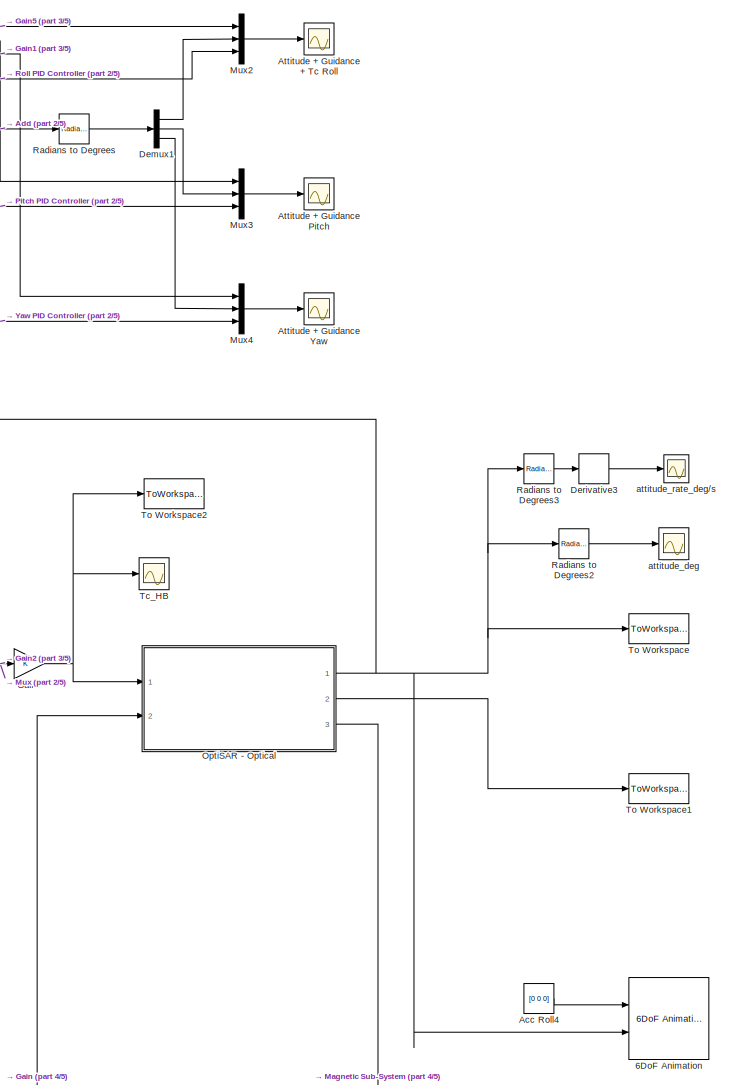
[diagram: root canvas - part 1/5, right side, full height]
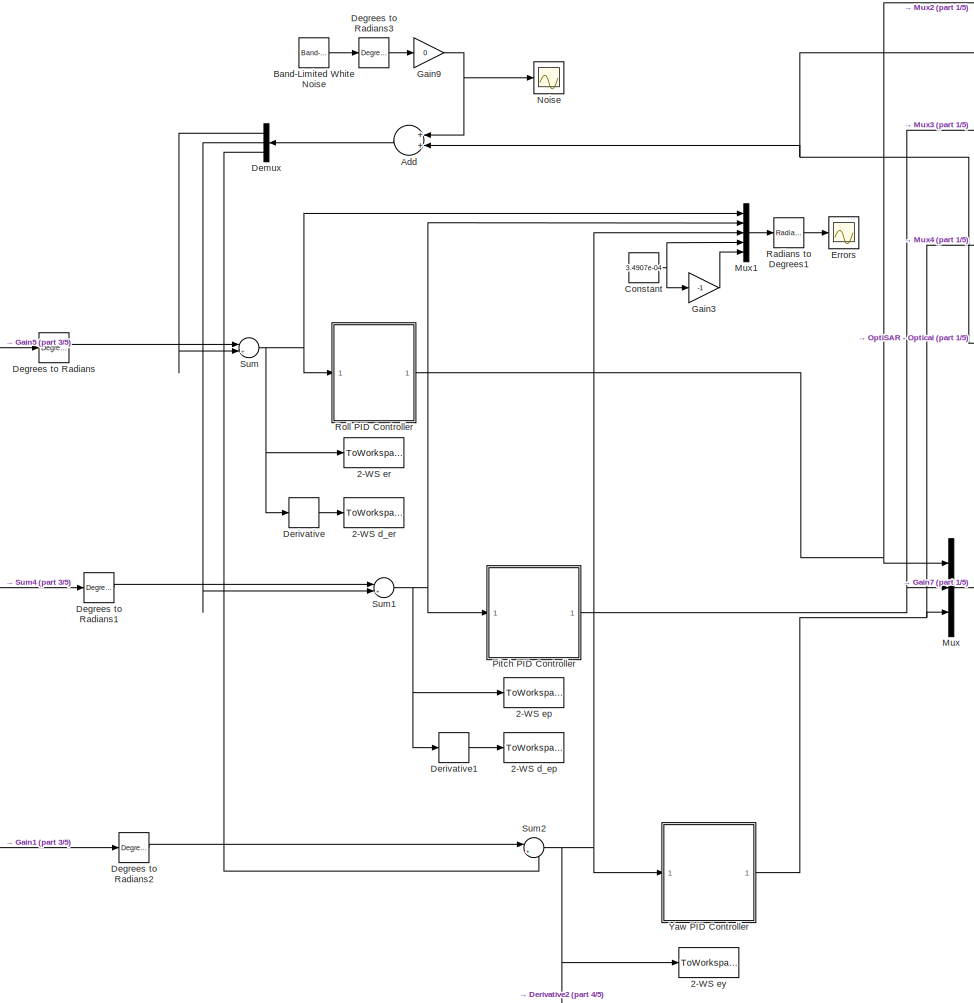
[diagram: root canvas - part 2/5, center side, full height]
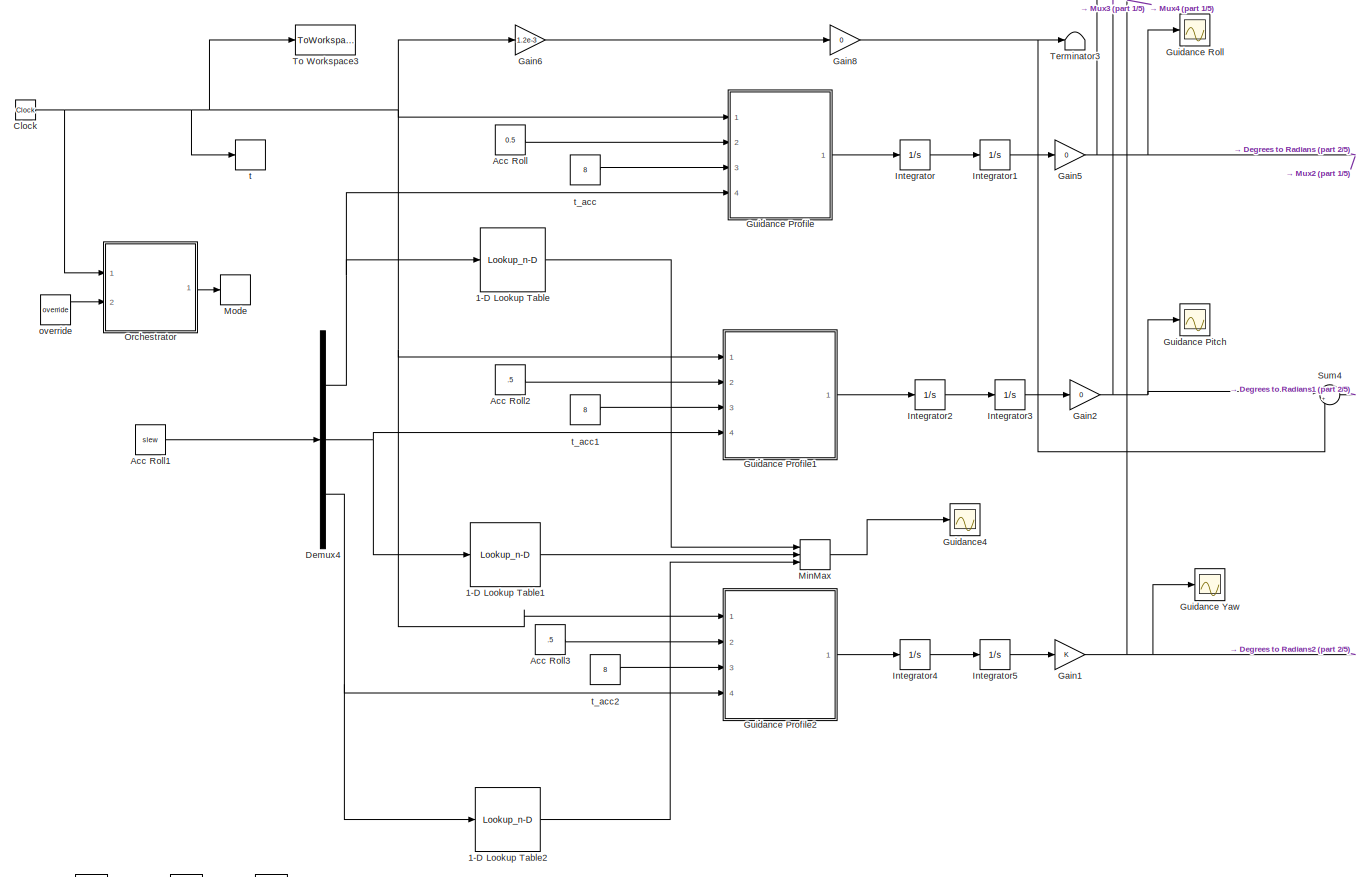
[diagram: root canvas - part 3/5, middle left region]
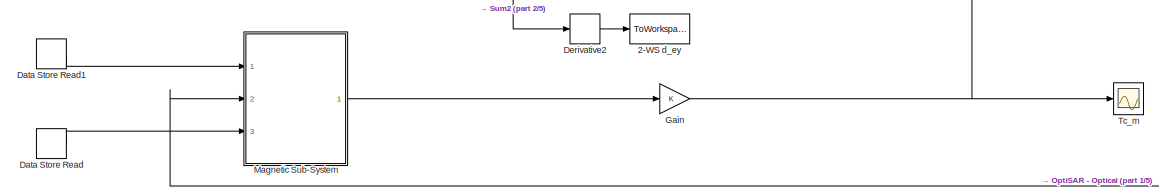
[diagram: root canvas - part 4/5, bottom center region]
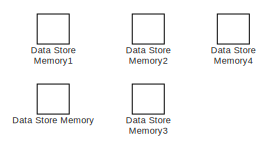
[diagram: root canvas - part 5/5, bottom left region]
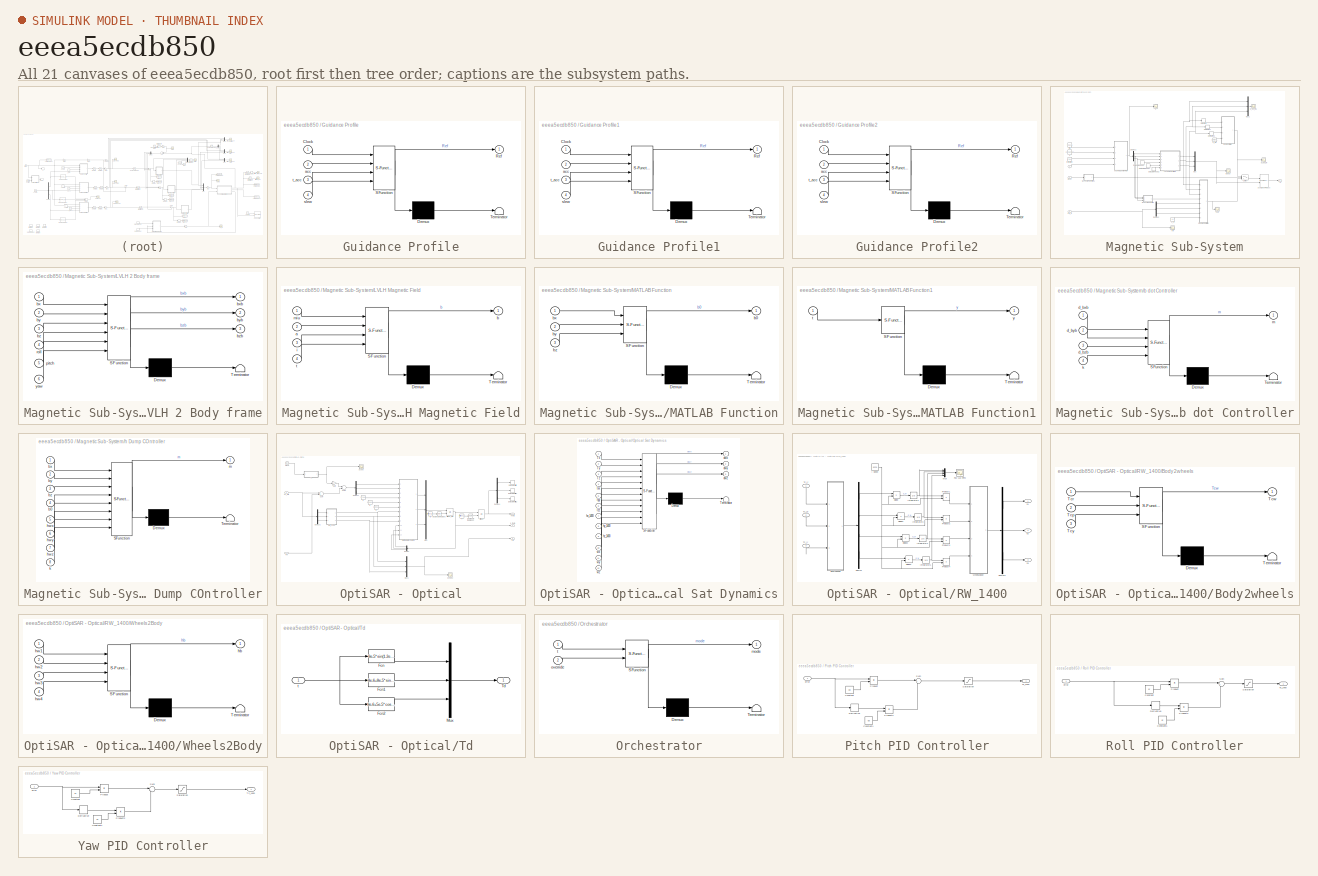
[diagram: thumbnail index - all 21 canvases of the model, root first then tree order]
MODEL slx_eeea5ecdb850
KIND model
CONFIG AbsTol = auto
CONFIG EnableMultiTasking = on
CONFIG FixedStep = 0.1
CONFIG MaxStep = auto
CONFIG MinStep = auto
CONFIG RelTol = 1e-3
CONFIG SampleTimeConstraint = Unconstrained
CONFIG Solver = FixedStepAuto
CONFIG SolverName = FixedStepAuto
CONFIG StartTime = 0.0
CONFIG StopTime = 60
BLOCK [Lookup_n-D] 1-D Lookup Table
  BreakpointsForDimension1 = [0,10,20,30,60,90]
  ExtrapMethod = Cubic spline
  InternalRulePriority = Speed
  InterpMethod = Cubic spline
  NumberOfTableDimensions = 1
  Ports = [1, 1]
  RndMeth = Simplest
  Table = [0,18,22,25,30,34]
BLOCK [Lookup_n-D] 1-D Lookup Table1
  BreakpointsForDimension1 = [0,30,60,90]
  ExtrapMethod = Cubic spline
  InternalRulePriority = Speed
  InterpMethod = Cubic spline
  NumberOfTableDimensions = 1
  Ports = [1, 1]
  RndMeth = Simplest
  Table = [0,25,30,34]
BLOCK [Lookup_n-D] 1-D Lookup Table2
  BreakpointsForDimension1 = [0,30,60,90]
  ExtrapMethod = Cubic spline
  InternalRulePriority = Speed
  InterpMethod = Cubic spline
  NumberOfTableDimensions = 1
  Ports = [1, 1]
  RndMeth = Simplest
  Table = [0,25,30,34]
BLOCK [ToWorkspace] 2-WS d_ep
  MaxDataPoints = inf
  Ports = [1]
  SampleTime = -1
  VariableName = d_ep
BLOCK [ToWorkspace] 2-WS d_er
  MaxDataPoints = inf
  Ports = [1]
  SampleTime = -1
  VariableName = d_er
BLOCK [ToWorkspace] 2-WS d_ey
  MaxDataPoints = inf
  Ports = [1]
  SampleTime = -1
  VariableName = d_ey
BLOCK [ToWorkspace] 2-WS ep
  MaxDataPoints = inf
  Ports = [1]
  SampleTime = -1
  VariableName = ep
BLOCK [ToWorkspace] 2-WS er
  MaxDataPoints = inf
  Ports = [1]
  SampleTime = -1
  VariableName = er
BLOCK [ToWorkspace] 2-WS ey
  MaxDataPoints = inf
  Ports = [1]
  SampleTime = -1
  VariableName = ey
BLOCK [Reference] 6DoF Animation  REF=aerolibanim/6DoF Animation
  Ports = [2]
  SourceBlock = aerolibanim/6DoF Animation
  SourceType = 6DoF_Animation
BLOCK [Constant] Acc Roll
  Value = 0.5
BLOCK [Constant] Acc Roll1
  Value = slew
  VectorParams1D = off
BLOCK [Constant] Acc Roll2
  Value = .5
BLOCK [Constant] Acc Roll3
  Value = .5
BLOCK [Constant] Acc Roll4
  Value = [0 0 0]
BLOCK [Sum] Add
  InputSameDT = off
  OutDataTypeStr = Inherit: Inherit via internal rule
  Ports = [2, 1]
  SaturateOnIntegerOverflow = off
BLOCK [Scope] Attitude + Guidance + Tc Roll
  NumInputPorts = 1
  Ports = [1]
  ScopeSpecificationString = Simulink.scopes.TimeScopeBlockCfg('CurrentConfiguration', extmgr.ConfigurationSet(extmgr.Configuration('Core','General UI',true),extmgr.Configuration('Core','Source UI',true),extmgr.Configuration('Sources','WiredSimulink',true,'DataLoggingVariableName','ScopeData1','DataLoggingSaveFormat','StructureWithTime','DataLoggingDecimation','1','DataLoggingDecimateData',true),extmgr.Configuration('Visuals'...<+1996ch>
BLOCK [Scope] Attitude + Guidance Pitch
  NumInputPorts = 1
  Ports = [1]
  ScopeSpecificationString = Simulink.scopes.TimeScopeBlockCfg('CurrentConfiguration', extmgr.ConfigurationSet(extmgr.Configuration('Core','General UI',true),extmgr.Configuration('Core','Source UI',true),extmgr.Configuration('Sources','WiredSimulink',true,'DataLoggingVariableName','ScopeData1','DataLoggingSaveFormat','StructureWithTime','DataLoggingDecimation','1','DataLoggingDecimateData',true),extmgr.Configuration('Visuals'...<+2032ch>
BLOCK [Scope] Attitude + Guidance Yaw
  NumInputPorts = 1
  Ports = [1]
  ScopeSpecificationString = Simulink.scopes.TimeScopeBlockCfg('CurrentConfiguration', extmgr.ConfigurationSet(extmgr.Configuration('Core','General UI',true),extmgr.Configuration('Core','Source UI',true),extmgr.Configuration('Sources','WiredSimulink',true,'DataLoggingVariableName','ScopeData2','DataLoggingSaveFormat','StructureWithTime','DataLoggingDecimation','1','DataLoggingDecimateData',true),extmgr.Configuration('Visuals'...<+1734ch>
BLOCK [Reference] Band-Limited White Noise  REF=simulink/Sources/Band-Limited
White Noise
  Ports = [0, 1]
  SourceBlock = simulink/Sources/Band-Limited\nWhite Noise
  SourceType = Band-Limited White Noise.
BLOCK [Clock] Clock
BLOCK [Constant] Constant
  Value = 3.4907e-04
BLOCK [DataStoreMemory] Data Store Memory
  DataStoreName = time
  ReadBeforeWriteMsg = warning
  ShowAdditionalParam = off
  WriteAfterReadMsg = warning
  WriteAfterWriteMsg = warning
BLOCK [DataStoreMemory] Data Store Memory1
  DataStoreName = mode
  ReadBeforeWriteMsg = warning
  ShowAdditionalParam = off
  WriteAfterReadMsg = warning
  WriteAfterWriteMsg = warning
BLOCK [DataStoreMemory] Data Store Memory2
  DataStoreName = roll
  ReadBeforeWriteMsg = warning
  ShowAdditionalParam = off
  WriteAfterReadMsg = warning
  WriteAfterWriteMsg = warning
BLOCK [DataStoreMemory] Data Store Memory3
  DataStoreName = pitch
  ReadBeforeWriteMsg = warning
  ShowAdditionalParam = off
  WriteAfterReadMsg = warning
  WriteAfterWriteMsg = warning
BLOCK [DataStoreMemory] Data Store Memory4
  DataStoreName = yaw
  ReadBeforeWriteMsg = warning
  ShowAdditionalParam = off
  WriteAfterReadMsg = warning
  WriteAfterWriteMsg = warning
BLOCK [DataStoreRead] Data Store Read
  DataStoreName = mode
  Ports = [0, 1]
BLOCK [DataStoreRead] Data Store Read1
  DataStoreElements = time
  DataStoreName = time
  Ports = [0, 1]
BLOCK [Reference] Degrees to Radians  REF=simulink_extras/Transformations/Degrees to
Radians
  Ports = [1, 1]
  SourceBlock = simulink_extras/Transformations/Degrees to\nRadians
  SourceType = DegreesToRadians
BLOCK [Reference] Degrees to Radians1  REF=simulink_extras/Transformations/Degrees to
Radians
  Ports = [1, 1]
  SourceBlock = simulink_extras/Transformations/Degrees to\nRadians
  SourceType = DegreesToRadians
BLOCK [Reference] Degrees to Radians2  REF=simulink_extras/Transformations/Degrees to
Radians
  Ports = [1, 1]
  SourceBlock = simulink_extras/Transformations/Degrees to\nRadians
  SourceType = DegreesToRadians
BLOCK [Reference] Degrees to Radians3  REF=simulink_extras/Transformations/Degrees to
Radians
  Ports = [1, 1]
  SourceBlock = simulink_extras/Transformations/Degrees to\nRadians
  SourceType = DegreesToRadians
BLOCK [Demux] Demux
  DisplayOption = bar
  Outputs = 3
  Ports = [1, 3]
BLOCK [Demux] Demux1
  DisplayOption = bar
  Outputs = 3
  Ports = [1, 3]
BLOCK [Demux] Demux4
  DisplayOption = bar
  Outputs = 3
  Ports = [1, 3]
BLOCK [Derivative] Derivative
BLOCK [Derivative] Derivative1
BLOCK [Derivative] Derivative2
BLOCK [Derivative] Derivative3
BLOCK [Scope] Errors
  NumInputPorts = 1
  Ports = [1]
  ScopeSpecificationString = Simulink.scopes.TimeScopeBlockCfg('CurrentConfiguration', extmgr.ConfigurationSet(extmgr.Configuration('Core','General UI',true),extmgr.Configuration('Core','Source UI',true),extmgr.Configuration('Sources','WiredSimulink',true,'DataLoggingVariableName','ScopeData4','DataLoggingSaveFormat','StructureWithTime','DataLoggingDecimation','1','DataLoggingDecimateData',true),extmgr.Configuration('Visuals'...<+2153ch>
BLOCK [Gain] Gain
  OutDataTypeStr = Inherit: Inherit via internal rule
  ParamDataTypeStr = Inherit: Inherit via internal rule
  SaturateOnIntegerOverflow = off
BLOCK [Gain] Gain1
  OutDataTypeStr = Inherit: Inherit via internal rule
  ParamDataTypeStr = Inherit: Inherit via internal rule
  SaturateOnIntegerOverflow = off
BLOCK [Gain] Gain2
  Gain = 0
  OutDataTypeStr = Inherit: Inherit via internal rule
  ParamDataTypeStr = Inherit: Inherit via internal rule
  SaturateOnIntegerOverflow = off
BLOCK [Gain] Gain3
  Gain = -1
  OutDataTypeStr = Inherit: Inherit via internal rule
  ParamDataTypeStr = Inherit: Inherit via internal rule
  SaturateOnIntegerOverflow = off
BLOCK [Gain] Gain5
  Gain = 0
  OutDataTypeStr = Inherit: Inherit via internal rule
  ParamDataTypeStr = Inherit: Inherit via internal rule
  SaturateOnIntegerOverflow = off
BLOCK [Gain] Gain6
  Gain = 1.2e-3
  OutDataTypeStr = Inherit: Inherit via internal rule
  ParamDataTypeStr = Inherit: Inherit via internal rule
  SaturateOnIntegerOverflow = off
BLOCK [Gain] Gain7
  OutDataTypeStr = Inherit: Inherit via internal rule
  ParamDataTypeStr = Inherit: Inherit via internal rule
  SaturateOnIntegerOverflow = off
BLOCK [Gain] Gain8
  Gain = 0
  OutDataTypeStr = Inherit: Inherit via internal rule
  ParamDataTypeStr = Inherit: Inherit via internal rule
  SaturateOnIntegerOverflow = off
BLOCK [Gain] Gain9
  Gain = 0
  OutDataTypeStr = Inherit: Inherit via internal rule
  ParamDataTypeStr = Inherit: Inherit via internal rule
  SaturateOnIntegerOverflow = off
BLOCK [Scope] Guidance Pitch
  NumInputPorts = 1
  Ports = [1]
  ScopeSpecificationString = Simulink.scopes.TimeScopeBlockCfg('CurrentConfiguration', extmgr.ConfigurationSet(extmgr.Configuration('Core','General UI',true),extmgr.Configuration('Core','Source UI',true),extmgr.Configuration('Sources','WiredSimulink',true,'DataLoggingVariableName','ScopeData1','DataLoggingSaveFormat','StructureWithTime','DataLoggingLimitDataPoints',true,'DataLoggingDecimation','1','DataLoggingDecimateData',tr...<+1699ch>
BLOCK [SubSystem] Guidance Profile
  ErrorFcn = Stateflow.Translate.translate
  PermitHierarchicalResolution = ExplicitOnly
  Ports = [4, 1]
  RequestExecContextInheritance = off
  SFBlockType = MATLAB Function
  TreatAsAtomicUnit = on
  Variant = off
BLOCK [Demux] Guidance Profile/ Demux 
  Outputs = 1
  Ports = [1, 1]
BLOCK [S-Function] Guidance Profile/ SFunction 
  EnableBusSupport = on
  FunctionName = sf_sfun
  PortCounts = [4 2]
  Ports = [4, 2]
  SFcnIsStateOwnerBlock = off
  SFunctionDeploymentMode = off
  Tag = Stateflow S-Function Simul_BASE_XLS_animation 2
BLOCK [Terminator] Guidance Profile/ Terminator 
BLOCK [Inport] Guidance Profile/Clock
  IconDisplay = Port number
BLOCK [Outport] Guidance Profile/Ref
  IconDisplay = Port number
BLOCK [Inport] Guidance Profile/acc
  IconDisplay = Port number
  Port = 2
BLOCK [Inport] Guidance Profile/slew
  IconDisplay = Port number
  Port = 4
BLOCK [Inport] Guidance Profile/t_acc
  IconDisplay = Port number
  Port = 3
BLOCK [SubSystem] Guidance Profile1
  ErrorFcn = Stateflow.Translate.translate
  PermitHierarchicalResolution = ExplicitOnly
  Ports = [4, 1]
  RequestExecContextInheritance = off
  SFBlockType = MATLAB Function
  TreatAsAtomicUnit = on
  Variant = off
BLOCK [Demux] Guidance Profile1/ Demux 
  Outputs = 1
  Ports = [1, 1]
BLOCK [S-Function] Guidance Profile1/ SFunction 
  EnableBusSupport = on
  FunctionName = sf_sfun
  PortCounts = [4 2]
  Ports = [4, 2]
  SFcnIsStateOwnerBlock = off
  SFunctionDeploymentMode = off
  Tag = Stateflow S-Function Simul_BASE_XLS_animation 3
BLOCK [Terminator] Guidance Profile1/ Terminator 
BLOCK [Inport] Guidance Profile1/Clock
  IconDisplay = Port number
BLOCK [Outport] Guidance Profile1/Ref
  IconDisplay = Port number
BLOCK [Inport] Guidance Profile1/acc
  IconDisplay = Port number
  Port = 2
BLOCK [Inport] Guidance Profile1/slew
  IconDisplay = Port number
  Port = 4
BLOCK [Inport] Guidance Profile1/t_acc
  IconDisplay = Port number
  Port = 3
BLOCK [SubSystem] Guidance Profile2
  ErrorFcn = Stateflow.Translate.translate
  PermitHierarchicalResolution = ExplicitOnly
  Ports = [4, 1]
  RequestExecContextInheritance = off
  SFBlockType = MATLAB Function
  TreatAsAtomicUnit = on
  Variant = off
BLOCK [Demux] Guidance Profile2/ Demux 
  Outputs = 1
  Ports = [1, 1]
BLOCK [S-Function] Guidance Profile2/ SFunction 
  EnableBusSupport = on
  FunctionName = sf_sfun
  PortCounts = [4 2]
  Ports = [4, 2]
  SFcnIsStateOwnerBlock = off
  SFunctionDeploymentMode = off
  Tag = Stateflow S-Function Simul_BASE_XLS_animation 4
BLOCK [Terminator] Guidance Profile2/ Terminator 
BLOCK [Inport] Guidance Profile2/Clock
  IconDisplay = Port number
BLOCK [Outport] Guidance Profile2/Ref
  IconDisplay = Port number
BLOCK [Inport] Guidance Profile2/acc
  IconDisplay = Port number
  Port = 2
BLOCK [Inport] Guidance Profile2/slew
  IconDisplay = Port number
  Port = 4
BLOCK [Inport] Guidance Profile2/t_acc
  IconDisplay = Port number
  Port = 3
BLOCK [Scope] Guidance Roll
  NumInputPorts = 1
  Ports = [1]
  ScopeSpecificationString = Simulink.scopes.TimeScopeBlockCfg('CurrentConfiguration', extmgr.ConfigurationSet(extmgr.Configuration('Core','General UI',true),extmgr.Configuration('Core','Source UI',true),extmgr.Configuration('Sources','WiredSimulink',true,'DataLoggingVariableName','ScopeData1','DataLoggingSaveFormat','StructureWithTime','DataLoggingLimitDataPoints',true,'DataLoggingDecimation','1','DataLoggingDecimateData',tr...<+1716ch>
BLOCK [Scope] Guidance Yaw
  NumInputPorts = 1
  Ports = [1]
  ScopeSpecificationString = Simulink.scopes.TimeScopeBlockCfg('CurrentConfiguration', extmgr.ConfigurationSet(extmgr.Configuration('Core','General UI',true),extmgr.Configuration('Core','Source UI',true),extmgr.Configuration('Sources','WiredSimulink',true,'DataLoggingVariableName','ScopeData2','DataLoggingSaveFormat','StructureWithTime','DataLoggingLimitDataPoints',true,'DataLoggingDecimation','1','DataLoggingDecimateData',tr...<+1691ch>
BLOCK [Scope] Guidance4
  NumInputPorts = 1
  Ports = [1]
  ScopeSpecificationString = Simulink.scopes.TimeScopeBlockCfg('CurrentConfiguration', extmgr.ConfigurationSet(extmgr.Configuration('Core','General UI',true),extmgr.Configuration('Core','Source UI',true),extmgr.Configuration('Sources','WiredSimulink',true,'DataLoggingVariableName','ScopeData1','DataLoggingSaveFormat','StructureWithTime','DataLoggingLimitDataPoints',true,'DataLoggingDecimation','1','DataLoggingDecimateData',tr...<+1727ch>
BLOCK [Integrator] Integrator
  Ports = [1, 1]
BLOCK [Integrator] Integrator1
  Ports = [1, 1]
BLOCK [Integrator] Integrator2
  Ports = [1, 1]
BLOCK [Integrator] Integrator3
  Ports = [1, 1]
BLOCK [Integrator] Integrator4
  Ports = [1, 1]
BLOCK [Integrator] Integrator5
  Ports = [1, 1]
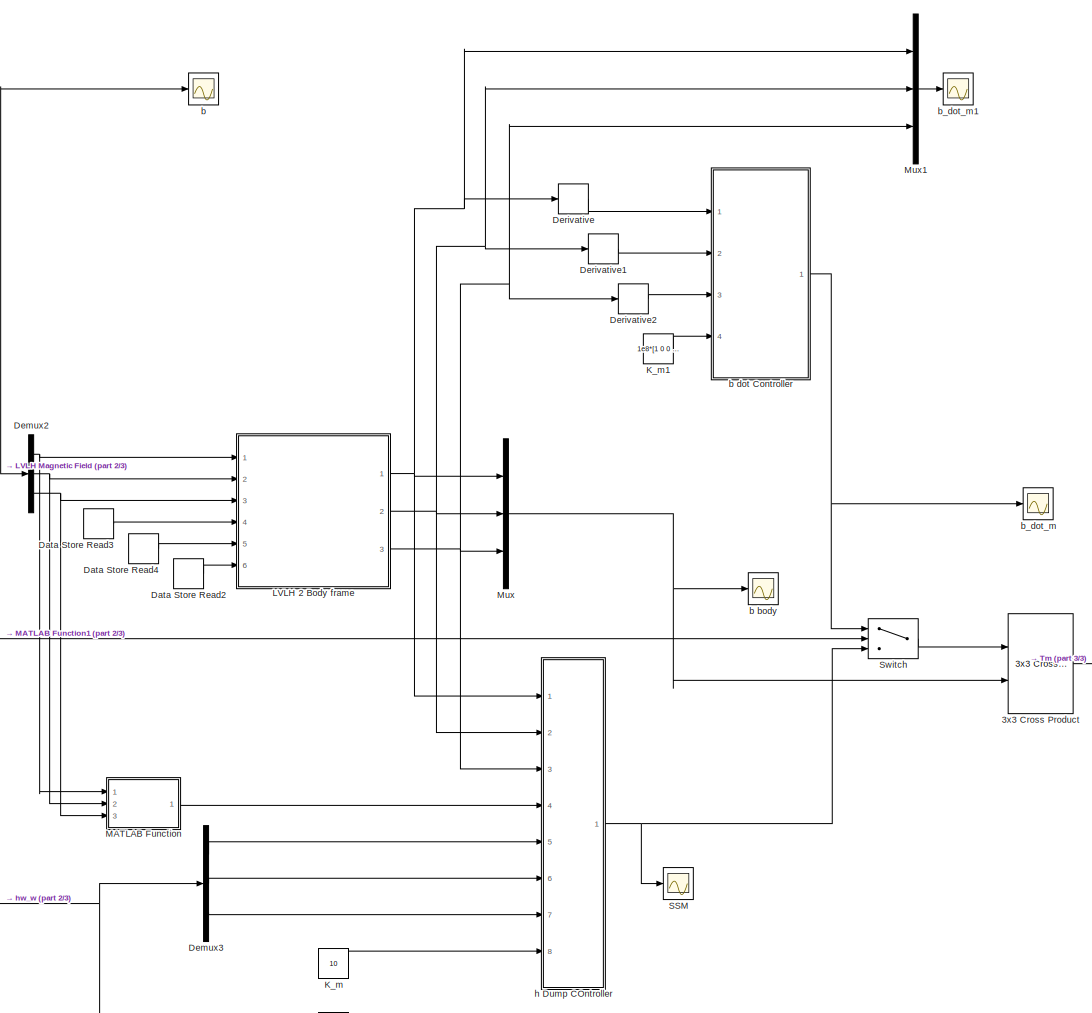
[diagram: Magnetic Sub-System - part 1/3, center side, full height]
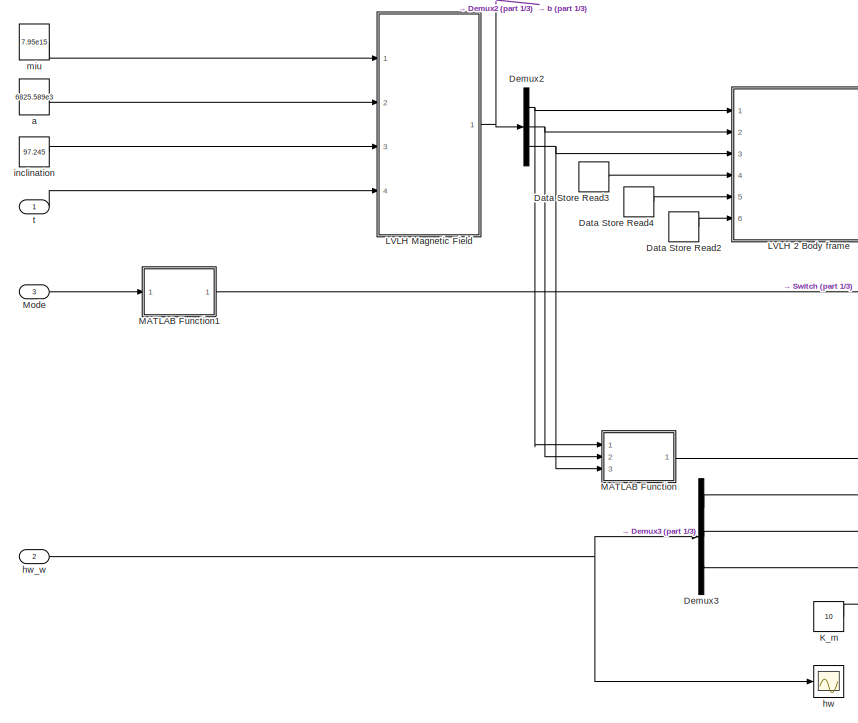
[diagram: Magnetic Sub-System - part 2/3, middle left region]
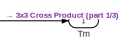
[diagram: Magnetic Sub-System - part 3/3, middle right region]
BLOCK [SubSystem] Magnetic Sub-System
  Ports = [3, 1]
  RequestExecContextInheritance = off
  Variant = off
BLOCK [Reference] Magnetic Sub-System/3x3 Cross Product  REF=aerolibutil/3x3 Cross Product
  Ports = [2, 1]
  SourceBlock = aerolibutil/3x3 Cross Product
  SourceType = CrossProduct
BLOCK [DataStoreRead] Magnetic Sub-System/Data Store Read2
  DataStoreName = yaw
  Ports = [0, 1]
BLOCK [DataStoreRead] Magnetic Sub-System/Data Store Read3
  DataStoreName = roll
  Ports = [0, 1]
BLOCK [DataStoreRead] Magnetic Sub-System/Data Store Read4
  DataStoreName = pitch
  Ports = [0, 1]
BLOCK [Demux] Magnetic Sub-System/Demux2
  DisplayOption = bar
  Outputs = 3
  Ports = [1, 3]
BLOCK [Demux] Magnetic Sub-System/Demux3
  DisplayOption = bar
  Outputs = 3
  Ports = [1, 3]
BLOCK [Derivative] Magnetic Sub-System/Derivative
BLOCK [Derivative] Magnetic Sub-System/Derivative1
BLOCK [Derivative] Magnetic Sub-System/Derivative2
BLOCK [Constant] Magnetic Sub-System/K_m
  Value = 10
BLOCK [Constant] Magnetic Sub-System/K_m1
  Value = 1e8*[1 0 0 ; 0 2 0 ; 0 0 1]
BLOCK [SubSystem] Magnetic Sub-System/LVLH 2 Body frame
  ErrorFcn = Stateflow.Translate.translate
  PermitHierarchicalResolution = ExplicitOnly
  Ports = [6, 3]
  RequestExecContextInheritance = off
  SFBlockType = MATLAB Function
  TreatAsAtomicUnit = on
  Variant = off
BLOCK [Demux] Magnetic Sub-System/LVLH 2 Body frame/ Demux 
  Outputs = 1
  Ports = [1, 1]
BLOCK [S-Function] Magnetic Sub-System/LVLH 2 Body frame/ SFunction 
  EnableBusSupport = on
  FunctionName = sf_sfun
  PortCounts = [6 4]
  Ports = [6, 4]
  SFcnIsStateOwnerBlock = off
  SFunctionDeploymentMode = off
  Tag = Stateflow S-Function Simul_BASE_XLS_animation 10
BLOCK [Terminator] Magnetic Sub-System/LVLH 2 Body frame/ Terminator 
BLOCK [Inport] Magnetic Sub-System/LVLH 2 Body frame/bx
  IconDisplay = Port number
BLOCK [Outport] Magnetic Sub-System/LVLH 2 Body frame/bxb
  IconDisplay = Port number
BLOCK [Inport] Magnetic Sub-System/LVLH 2 Body frame/by
  IconDisplay = Port number
  Port = 2
BLOCK [Outport] Magnetic Sub-System/LVLH 2 Body frame/byb
  IconDisplay = Port number
  Port = 2
BLOCK [Inport] Magnetic Sub-System/LVLH 2 Body frame/bz
  IconDisplay = Port number
  Port = 3
BLOCK [Outport] Magnetic Sub-System/LVLH 2 Body frame/bzb
  IconDisplay = Port number
  Port = 3
BLOCK [Inport] Magnetic Sub-System/LVLH 2 Body frame/pitch
  IconDisplay = Port number
  Port = 5
BLOCK [Inport] Magnetic Sub-System/LVLH 2 Body frame/roll
  IconDisplay = Port number
  Port = 4
BLOCK [Inport] Magnetic Sub-System/LVLH 2 Body frame/yaw
  IconDisplay = Port number
  Port = 6
BLOCK [SubSystem] Magnetic Sub-System/LVLH Magnetic Field
  ErrorFcn = Stateflow.Translate.translate
  PermitHierarchicalResolution = ExplicitOnly
  Ports = [4, 1]
  RequestExecContextInheritance = off
  SFBlockType = MATLAB Function
  TreatAsAtomicUnit = on
  Variant = off
BLOCK [Demux] Magnetic Sub-System/LVLH Magnetic Field/ Demux 
  Outputs = 1
  Ports = [1, 1]
BLOCK [S-Function] Magnetic Sub-System/LVLH Magnetic Field/ SFunction 
  EnableBusSupport = on
  FunctionName = sf_sfun
  PortCounts = [4 2]
  Ports = [4, 2]
  SFcnIsStateOwnerBlock = off
  SFunctionDeploymentMode = off
  Tag = Stateflow S-Function Simul_BASE_XLS_animation 14
BLOCK [Terminator] Magnetic Sub-System/LVLH Magnetic Field/ Terminator 
BLOCK [Inport] Magnetic Sub-System/LVLH Magnetic Field/a
  IconDisplay = Port number
  Port = 2
BLOCK [Outport] Magnetic Sub-System/LVLH Magnetic Field/b
  IconDisplay = Port number
BLOCK [Inport] Magnetic Sub-System/LVLH Magnetic Field/i
  IconDisplay = Port number
  Port = 3
BLOCK [Inport] Magnetic Sub-System/LVLH Magnetic Field/miu
  IconDisplay = Port number
BLOCK [Inport] Magnetic Sub-System/LVLH Magnetic Field/t
  IconDisplay = Port number
  Port = 4
BLOCK [SubSystem] Magnetic Sub-System/MATLAB Function
  ErrorFcn = Stateflow.Translate.translate
  PermitHierarchicalResolution = ExplicitOnly
  Ports = [3, 1]
  RequestExecContextInheritance = off
  SFBlockType = MATLAB Function
  TreatAsAtomicUnit = on
  Variant = off
BLOCK [Demux] Magnetic Sub-System/MATLAB Function/ Demux 
  Outputs = 1
  Ports = [1, 1]
BLOCK [S-Function] Magnetic Sub-System/MATLAB Function/ SFunction 
  EnableBusSupport = on
  FunctionName = sf_sfun
  PortCounts = [3 2]
  Ports = [3, 2]
  SFcnIsStateOwnerBlock = off
  SFunctionDeploymentMode = off
  Tag = Stateflow S-Function Simul_BASE_XLS_animation 18
BLOCK [Terminator] Magnetic Sub-System/MATLAB Function/ Terminator 
BLOCK [Outport] Magnetic Sub-System/MATLAB Function/b0
  IconDisplay = Port number
BLOCK [Inport] Magnetic Sub-System/MATLAB Function/bx
  IconDisplay = Port number
BLOCK [Inport] Magnetic Sub-System/MATLAB Function/by
  IconDisplay = Port number
  Port = 2
BLOCK [Inport] Magnetic Sub-System/MATLAB Function/bz
  IconDisplay = Port number
  Port = 3
BLOCK [SubSystem] Magnetic Sub-System/MATLAB Function1
  ErrorFcn = Stateflow.Translate.translate
  PermitHierarchicalResolution = ExplicitOnly
  Ports = [1, 1]
  RequestExecContextInheritance = off
  SFBlockType = MATLAB Function
  TreatAsAtomicUnit = on
  Variant = off
BLOCK [Demux] Magnetic Sub-System/MATLAB Function1/ Demux 
  Outputs = 1
  Ports = [1, 1]
BLOCK [S-Function] Magnetic Sub-System/MATLAB Function1/ SFunction 
  EnableBusSupport = on
  FunctionName = sf_sfun
  PortCounts = [1 2]
  Ports = [1, 2]
  SFcnIsStateOwnerBlock = off
  SFunctionDeploymentMode = off
  Tag = Stateflow S-Function Simul_BASE_XLS_animation 17
BLOCK [Terminator] Magnetic Sub-System/MATLAB Function1/ Terminator 
BLOCK [Inport] Magnetic Sub-System/MATLAB Function1/t
  IconDisplay = Port number
BLOCK [Outport] Magnetic Sub-System/MATLAB Function1/y
  IconDisplay = Port number
BLOCK [Inport] Magnetic Sub-System/Mode
  IconDisplay = Port number
  Port = 3
BLOCK [Mux] Magnetic Sub-System/Mux
  DisplayOption = bar
  Inputs = 3
  Ports = [3, 1]
BLOCK [Mux] Magnetic Sub-System/Mux1
  DisplayOption = bar
  Inputs = 3
  Ports = [3, 1]
BLOCK [Scope] Magnetic Sub-System/SSM
  NumInputPorts = 1
  Ports = [1]
  ScopeSpecificationString = Simulink.scopes.TimeScopeBlockCfg('CurrentConfiguration', extmgr.ConfigurationSet(extmgr.Configuration('Core','General UI',true),extmgr.Configuration('Core','Source UI',true),extmgr.Configuration('Sources','WiredSimulink',true,'DataLoggingVariableName','ScopeData5'),extmgr.Configuration('Visuals','Time Domain',true,'SerializedDisplays',{struct('MinYLimReal','-126.03034','MaxYLimReal','136.22559','...<+1510ch>
BLOCK [Switch] Magnetic Sub-System/Switch
  Criteria = u2 > Threshold
  InputSameDT = off
  SaturateOnIntegerOverflow = off
BLOCK [Outport] Magnetic Sub-System/Tm
  IconDisplay = Port number
BLOCK [Constant] Magnetic Sub-System/a
  Value = 6825.589e3
BLOCK [Scope] Magnetic Sub-System/b
  NumInputPorts = 1
  Ports = [1]
  ScopeSpecificationString = Simulink.scopes.TimeScopeBlockCfg('CurrentConfiguration', extmgr.ConfigurationSet(extmgr.Configuration('Core','General UI',true),extmgr.Configuration('Core','Source UI',true),extmgr.Configuration('Sources','WiredSimulink',true,'DataLoggingVariableName','ScopeData2','DataLoggingSaveFormat','Array','DataLoggingDecimation','1','DataLoggingDecimateData',true),extmgr.Configuration('Visuals','Time Domai...<+1902ch>
BLOCK [Scope] Magnetic Sub-System/b body
  NumInputPorts = 1
  Ports = [1]
  ScopeSpecificationString = Simulink.scopes.TimeScopeBlockCfg('CurrentConfiguration', extmgr.ConfigurationSet(extmgr.Configuration('Core','General UI',true),extmgr.Configuration('Core','Source UI',true),extmgr.Configuration('Sources','WiredSimulink',true,'DataLoggingVariableName','ScopeData3'),extmgr.Configuration('Visuals','Time Domain',true,'SerializedDisplays',{struct('MinYLimReal','-0.00006','MaxYLimReal','0.00006','YLab...<+1501ch>
BLOCK [SubSystem] Magnetic Sub-System/b dot Controller
  ErrorFcn = Stateflow.Translate.translate
  PermitHierarchicalResolution = ExplicitOnly
  Ports = [4, 1]
  RequestExecContextInheritance = off
  SFBlockType = MATLAB Function
  TreatAsAtomicUnit = on
  Variant = off
BLOCK [Demux] Magnetic Sub-System/b dot Controller/ Demux 
  Outputs = 1
  Ports = [1, 1]
BLOCK [S-Function] Magnetic Sub-System/b dot Controller/ SFunction 
  EnableBusSupport = on
  FunctionName = sf_sfun
  PortCounts = [4 2]
  Ports = [4, 2]
  SFcnIsStateOwnerBlock = off
  SFunctionDeploymentMode = off
  Tag = Stateflow S-Function Simul_BASE_XLS_animation 15
BLOCK [Terminator] Magnetic Sub-System/b dot Controller/ Terminator 
BLOCK [Inport] Magnetic Sub-System/b dot Controller/d_bxb
  IconDisplay = Port number
BLOCK [Inport] Magnetic Sub-System/b dot Controller/d_byb
  IconDisplay = Port number
  Port = 2
BLOCK [Inport] Magnetic Sub-System/b dot Controller/d_bzb
  IconDisplay = Port number
  Port = 3
BLOCK [Inport] Magnetic Sub-System/b dot Controller/k
  IconDisplay = Port number
  Port = 4
BLOCK [Outport] Magnetic Sub-System/b dot Controller/m
  IconDisplay = Port number
BLOCK [Scope] Magnetic Sub-System/b_dot_m
  NumInputPorts = 1
  Ports = [1]
  ScopeSpecificationString = Simulink.scopes.TimeScopeBlockCfg('CurrentConfiguration', extmgr.ConfigurationSet(extmgr.Configuration('Core','General UI',true),extmgr.Configuration('Core','Source UI',true),extmgr.Configuration('Sources','WiredSimulink',true,'DataLoggingVariableName','ScopeData1'),extmgr.Configuration('Visuals','Time Domain',true,'SerializedDisplays',{struct('MinYLimReal','-24.30494','MaxYLimReal','22.64683','YL...<+1439ch>
BLOCK [Scope] Magnetic Sub-System/b_dot_m1
  NumInputPorts = 1
  Ports = [1]
  ScopeSpecificationString = Simulink.scopes.TimeScopeBlockCfg('CurrentConfiguration', extmgr.ConfigurationSet(extmgr.Configuration('Core','General UI',true),extmgr.Configuration('Core','Source UI',true),extmgr.Configuration('Sources','WiredSimulink',true,'DataLoggingVariableName','ScopeData1'),extmgr.Configuration('Visuals','Time Domain',true,'SerializedDisplays',{struct('MinYLimReal','-0.00005','MaxYLimReal','0.00006','YLab...<+1502ch>
BLOCK [SubSystem] Magnetic Sub-System/h Dump COntroller
  ErrorFcn = Stateflow.Translate.translate
  PermitHierarchicalResolution = ExplicitOnly
  Ports = [8, 1]
  RequestExecContextInheritance = off
  SFBlockType = MATLAB Function
  TreatAsAtomicUnit = on
  Variant = off
BLOCK [Demux] Magnetic Sub-System/h Dump COntroller/ Demux 
  Outputs = 1
  Ports = [1, 1]
BLOCK [S-Function] Magnetic Sub-System/h Dump COntroller/ SFunction 
  EnableBusSupport = on
  FunctionName = sf_sfun
  PortCounts = [8 2]
  Ports = [8, 2]
  SFcnIsStateOwnerBlock = off
  SFunctionDeploymentMode = off
  Tag = Stateflow S-Function Simul_BASE_XLS_animation 11
BLOCK [Terminator] Magnetic Sub-System/h Dump COntroller/ Terminator 
BLOCK [Inport] Magnetic Sub-System/h Dump COntroller/b0
  IconDisplay = Port number
  Port = 4
BLOCK [Inport] Magnetic Sub-System/h Dump COntroller/bx
  IconDisplay = Port number
BLOCK [Inport] Magnetic Sub-System/h Dump COntroller/by
  IconDisplay = Port number
  Port = 2
BLOCK [Inport] Magnetic Sub-System/h Dump COntroller/bz
  IconDisplay = Port number
  Port = 3
BLOCK [Inport] Magnetic Sub-System/h Dump COntroller/hwx
  IconDisplay = Port number
  Port = 5
BLOCK [Inport] Magnetic Sub-System/h Dump COntroller/hwy
  IconDisplay = Port number
  Port = 6
BLOCK [Inport] Magnetic Sub-System/h Dump COntroller/hwz
  IconDisplay = Port number
  Port = 7
BLOCK [Inport] Magnetic Sub-System/h Dump COntroller/k
  IconDisplay = Port number
  Port = 8
BLOCK [Outport] Magnetic Sub-System/h Dump COntroller/m
  IconDisplay = Port number
BLOCK [Scope] Magnetic Sub-System/hw
  NumInputPorts = 1
  Ports = [1]
  ScopeSpecificationString = Simulink.scopes.TimeScopeBlockCfg('CurrentConfiguration', extmgr.ConfigurationSet(extmgr.Configuration('Core','General UI',true),extmgr.Configuration('Core','Source UI',true),extmgr.Configuration('Sources','WiredSimulink',true,'DataLoggingVariableName','ScopeData2','DataLoggingSaveFormat','Array','DataLoggingDecimation','1','DataLoggingDecimateData',true),extmgr.Configuration('Visuals','Time Domai...<+1522ch>
BLOCK [Inport] Magnetic Sub-System/hw_w
  IconDisplay = Port number
  Port = 2
BLOCK [Constant] Magnetic Sub-System/inclination
  Value = 97.245
BLOCK [Constant] Magnetic Sub-System/miu
  Value = 7.95e15
BLOCK [Inport] Magnetic Sub-System/t
  IconDisplay = Port number
BLOCK [MinMax] MinMax
  Function = max
  InputSameDT = off
  Inputs = 3
  Ports = [3, 1]
  SaturateOnIntegerOverflow = off
BLOCK [DataStoreWrite] Mode
  DataStoreName = mode
  Ports = [1]
BLOCK [Mux] Mux
  DisplayOption = bar
  Inputs = 3
  Ports = [3, 1]
BLOCK [Mux] Mux1
  DisplayOption = bar
  Inputs = 5
  Ports = [5, 1]
BLOCK [Mux] Mux2
  DisplayOption = bar
  Inputs = 3
  Ports = [3, 1]
BLOCK [Mux] Mux3
  DisplayOption = bar
  Inputs = 3
  Ports = [3, 1]
BLOCK [Mux] Mux4
  DisplayOption = bar
  Inputs = 3
  Ports = [3, 1]
BLOCK [Scope] Noise
  NumInputPorts = 1
  Ports = [1]
  ScopeSpecificationString = Simulink.scopes.TimeScopeBlockCfg('CurrentConfiguration', extmgr.ConfigurationSet(extmgr.Configuration('Core','General UI',true),extmgr.Configuration('Core','Source UI',true),extmgr.Configuration('Sources','WiredSimulink',true,'DataLoggingVariableName','ScopeData1'),extmgr.Configuration('Visuals','Time Domain',true,'SerializedDisplays',{struct('MinYLimReal','-1.00000','MaxYLimReal','1.00000','YLab...<+1393ch>
BLOCK [SubSystem] OptiSAR - Optical
  Ports = [2, 3]
  RequestExecContextInheritance = off
  Variant = off
BLOCK [Integrator] OptiSAR - Optical/Attitude
  InitialConditionSource = external
  Ports = [2, 1]
BLOCK [Integrator] OptiSAR - Optical/Attitude_rate
  InitialConditionSource = external
  Ports = [2, 1]
BLOCK [Clock] OptiSAR - Optical/Clock
BLOCK [DataStoreWrite] OptiSAR - Optical/Data Store Write
  DataStoreName = roll
  Ports = [1]
BLOCK [DataStoreWrite] OptiSAR - Optical/Data Store Write1
  DataStoreName = pitch
  Ports = [1]
BLOCK [DataStoreWrite] OptiSAR - Optical/Data Store Write2
  DataStoreName = yaw
  Ports = [1]
BLOCK [Reference] OptiSAR - Optical/Degrees to Radians  REF=simulink_extras/Transformations/Degrees to
Radians
  Ports = [1, 1]
  SourceBlock = simulink_extras/Transformations/Degrees to\nRadians
  SourceType = DegreesToRadians
BLOCK [Reference] OptiSAR - Optical/Degrees to Radians1  REF=simulink_extras/Transformations/Degrees to
Radians
  Ports = [1, 1]
  SourceBlock = simulink_extras/Transformations/Degrees to\nRadians
  SourceType = DegreesToRadians
BLOCK [Demux] OptiSAR - Optical/Demux
  DisplayOption = bar
  Outputs = 3
  Ports = [1, 3]
BLOCK [Demux] OptiSAR - Optical/Demux1
  DisplayOption = bar
  Outputs = 3
  Ports = [1, 3]
BLOCK [Demux] OptiSAR - Optical/Demux2
  DisplayOption = bar
  Outputs = 3
  Ports = [1, 3]
BLOCK [Demux] OptiSAR - Optical/Demux4
  DisplayOption = bar
  Outputs = 3
  Ports = [1, 3]
BLOCK [Gain] OptiSAR - Optical/Gain
  Gain = 0
  OutDataTypeStr = Inherit: Inherit via internal rule
  ParamDataTypeStr = Inherit: Inherit via internal rule
  SaturateOnIntegerOverflow = off
BLOCK [Constant] OptiSAR - Optical/I1
  Value = 574.10
BLOCK [Constant] OptiSAR - Optical/I2
  Value = 5204.23
BLOCK [Constant] OptiSAR - Optical/I3
  Value = 5285.11
BLOCK [Constant] OptiSAR - Optical/I4
  Value = attitude_0
BLOCK [Constant] OptiSAR - Optical/I5
  Value = attitude_rate_0
BLOCK [Mux] OptiSAR - Optical/Mux
  DisplayOption = bar
  Inputs = 3
  Ports = [3, 1]
BLOCK [Mux] OptiSAR - Optical/Mux1
  DisplayOption = bar
  Inputs = 3
  Ports = [3, 1]
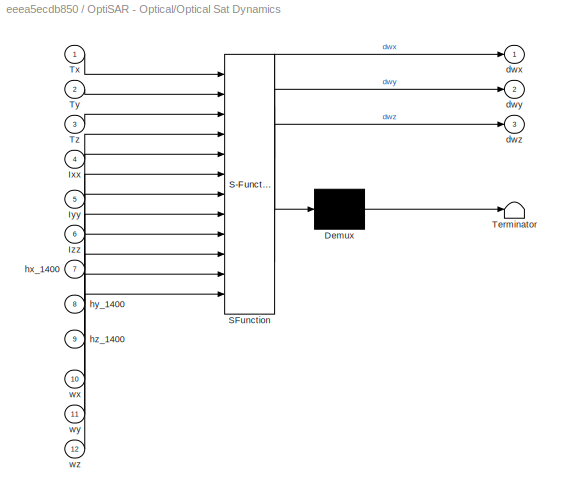
BLOCK [SubSystem] OptiSAR - Optical/Optical Sat Dynamics
  ErrorFcn = Stateflow.Translate.translate
  PermitHierarchicalResolution = ExplicitOnly
  Ports = [12, 3]
  RequestExecContextInheritance = off
  SFBlockType = MATLAB Function
  TreatAsAtomicUnit = on
  Variant = off
BLOCK [Demux] OptiSAR - Optical/Optical Sat Dynamics/ Demux 
  Outputs = 1
  Ports = [1, 1]
BLOCK [S-Function] OptiSAR - Optical/Optical Sat Dynamics/ SFunction 
  EnableBusSupport = on
  FunctionName = sf_sfun
  PortCounts = [12 4]
  Ports = [12, 4]
  SFcnIsStateOwnerBlock = off
  SFunctionDeploymentMode = off
  Tag = Stateflow S-Function Simul_BASE_XLS_animation 1
BLOCK [Terminator] OptiSAR - Optical/Optical Sat Dynamics/ Terminator 
BLOCK [Inport] OptiSAR - Optical/Optical Sat Dynamics/Ixx
  IconDisplay = Port number
  Port = 4
BLOCK [Inport] OptiSAR - Optical/Optical Sat Dynamics/Iyy
  IconDisplay = Port number
  Port = 5
BLOCK [Inport] OptiSAR - Optical/Optical Sat Dynamics/Izz
  IconDisplay = Port number
  Port = 6
BLOCK [Inport] OptiSAR - Optical/Optical Sat Dynamics/Tx
  IconDisplay = Port number
BLOCK [Inport] OptiSAR - Optical/Optical Sat Dynamics/Ty
  IconDisplay = Port number
  Port = 2
BLOCK [Inport] OptiSAR - Optical/Optical Sat Dynamics/Tz
  IconDisplay = Port number
  Port = 3
BLOCK [Outport] OptiSAR - Optical/Optical Sat Dynamics/dwx
  IconDisplay = Port number
BLOCK [Outport] OptiSAR - Optical/Optical Sat Dynamics/dwy
  IconDisplay = Port number
  Port = 2
BLOCK [Outport] OptiSAR - Optical/Optical Sat Dynamics/dwz
  IconDisplay = Port number
  Port = 3
BLOCK [Inport] OptiSAR - Optical/Optical Sat Dynamics/hx_1400
  IconDisplay = Port number
  Port = 7
BLOCK [Inport] OptiSAR - Optical/Optical Sat Dynamics/hy_1400
  IconDisplay = Port number
  Port = 8
BLOCK [Inport] OptiSAR - Optical/Optical Sat Dynamics/hz_1400
  IconDisplay = Port number
  Port = 9
BLOCK [Inport] OptiSAR - Optical/Optical Sat Dynamics/wx
  IconDisplay = Port number
  Port = 10
BLOCK [Inport] OptiSAR - Optical/Optical Sat Dynamics/wy
  IconDisplay = Port number
  Port = 11
BLOCK [Inport] OptiSAR - Optical/Optical Sat Dynamics/wz
  IconDisplay = Port number
  Port = 12
BLOCK [SubSystem] OptiSAR - Optical/RW_1400
  Ports = [3, 3]
  RequestExecContextInheritance = off
  Variant = off
BLOCK [SubSystem] OptiSAR - Optical/RW_1400/Body2wheels
  ErrorFcn = Stateflow.Translate.translate
  PermitHierarchicalResolution = ExplicitOnly
  Ports = [3, 1]
  RequestExecContextInheritance = off
  SFBlockType = MATLAB Function
  TreatAsAtomicUnit = on
  Variant = off
BLOCK [Demux] OptiSAR - Optical/RW_1400/Body2wheels/ Demux 
  Outputs = 1
  Ports = [1, 1]
BLOCK [S-Function] OptiSAR - Optical/RW_1400/Body2wheels/ SFunction 
  EnableBusSupport = on
  FunctionName = sf_sfun
  PortCounts = [3 2]
  Ports = [3, 2]
  SFcnIsStateOwnerBlock = off
  SFunctionDeploymentMode = off
  Tag = Stateflow S-Function Simul_BASE_XLS_animation 12
BLOCK [Terminator] OptiSAR - Optical/RW_1400/Body2wheels/ Terminator 
BLOCK [Inport] OptiSAR - Optical/RW_1400/Body2wheels/Tcp
  IconDisplay = Port number
  Port = 2
BLOCK [Inport] OptiSAR - Optical/RW_1400/Body2wheels/Tcr
  IconDisplay = Port number
BLOCK [Outport] OptiSAR - Optical/RW_1400/Body2wheels/Tcw
  IconDisplay = Port number
BLOCK [Inport] OptiSAR - Optical/RW_1400/Body2wheels/Tcy
  IconDisplay = Port number
  Port = 3
BLOCK [Demux] OptiSAR - Optical/RW_1400/Demux
  DisplayOption = bar
  Ports = [1, 4]
BLOCK [Demux] OptiSAR - Optical/RW_1400/Demux1
  DisplayOption = bar
  Outputs = 3
  Ports = [1, 3]
BLOCK [Product] OptiSAR - Optical/RW_1400/Divide
  InputSameDT = off
  Inputs = */
  OutDataTypeStr = Inherit: Inherit via internal rule
  Ports = [2, 1]
  RndMeth = Floor
  SaturateOnIntegerOverflow = off
BLOCK [Product] OptiSAR - Optical/RW_1400/Divide1
  InputSameDT = off
  Inputs = */
  OutDataTypeStr = Inherit: Inherit via internal rule
  Ports = [2, 1]
  RndMeth = Floor
  SaturateOnIntegerOverflow = off
BLOCK [Product] OptiSAR - Optical/RW_1400/Divide2
  InputSameDT = off
  Inputs = */
  OutDataTypeStr = Inherit: Inherit via internal rule
  Ports = [2, 1]
  RndMeth = Floor
  SaturateOnIntegerOverflow = off
BLOCK [Product] OptiSAR - Optical/RW_1400/Divide3
  InputSameDT = off
  Inputs = */
  OutDataTypeStr = Inherit: Inherit via internal rule
  Ports = [2, 1]
  RndMeth = Floor
  SaturateOnIntegerOverflow = off
BLOCK [Constant] OptiSAR - Optical/RW_1400/I wheel
  Value = .0229
BLOCK [Integrator] OptiSAR - Optical/RW_1400/Integrator1
  Ports = [1, 1]
BLOCK [Integrator] OptiSAR - Optical/RW_1400/Integrator2
  Ports = [1, 1]
BLOCK [Integrator] OptiSAR - Optical/RW_1400/Integrator3
  Ports = [1, 1]
BLOCK [Integrator] OptiSAR - Optical/RW_1400/Integrator4
  Ports = [1, 1]
BLOCK [Mux] OptiSAR - Optical/RW_1400/Mux
  DisplayOption = bar
  Ports = [4, 1]
BLOCK [Product] OptiSAR - Optical/RW_1400/Product1
  InputSameDT = off
  OutDataTypeStr = Inherit: Inherit via internal rule
  Ports = [2, 1]
  RndMeth = Floor
  SaturateOnIntegerOverflow = off
BLOCK [Product] OptiSAR - Optical/RW_1400/Product2
  InputSameDT = off
  OutDataTypeStr = Inherit: Inherit via internal rule
  Ports = [2, 1]
  RndMeth = Floor
  SaturateOnIntegerOverflow = off
BLOCK [Product] OptiSAR - Optical/RW_1400/Product3
  InputSameDT = off
  OutDataTypeStr = Inherit: Inherit via internal rule
  Ports = [2, 1]
  RndMeth = Floor
  SaturateOnIntegerOverflow = off
BLOCK [Product] OptiSAR - Optical/RW_1400/Product4
  InputSameDT = off
  OutDataTypeStr = Inherit: Inherit via internal rule
  Ports = [2, 1]
  RndMeth = Floor
  SaturateOnIntegerOverflow = off
BLOCK [Scope] OptiSAR - Optical/RW_1400/RW-110 RPM
  NumInputPorts = 1
  Ports = [1]
  ScopeSpecificationString = Simulink.scopes.TimeScopeBlockCfg('CurrentConfiguration', extmgr.ConfigurationSet(extmgr.Configuration('Core','General UI',true),extmgr.Configuration('Core','Source UI',true),extmgr.Configuration('Sources','WiredSimulink',true,'DataLoggingVariableName','ScopeData1'),extmgr.Configuration('Visuals','Time Domain',true,'SerializedDisplays',{struct('MinYLimReal','-1.00000','MaxYLimReal','1.00000','YLab...<+1467ch>
BLOCK [Inport] OptiSAR - Optical/RW_1400/Tc_l_p
  IconDisplay = Port number
  Port = 2
BLOCK [Inport] OptiSAR - Optical/RW_1400/Tc_l_r
  IconDisplay = Port number
BLOCK [Inport] OptiSAR - Optical/RW_1400/Tc_l_y
  IconDisplay = Port number
  Port = 3
BLOCK [SubSystem] OptiSAR - Optical/RW_1400/Wheels2Body
  ErrorFcn = Stateflow.Translate.translate
  PermitHierarchicalResolution = ExplicitOnly
  Ports = [4, 1]
  RequestExecContextInheritance = off
  SFBlockType = MATLAB Function
  TreatAsAtomicUnit = on
  Variant = off
BLOCK [Demux] OptiSAR - Optical/RW_1400/Wheels2Body/ Demux 
  Outputs = 1
  Ports = [1, 1]
BLOCK [S-Function] OptiSAR - Optical/RW_1400/Wheels2Body/ SFunction 
  EnableBusSupport = on
  FunctionName = sf_sfun
  PortCounts = [4 2]
  Ports = [4, 2]
  SFcnIsStateOwnerBlock = off
  SFunctionDeploymentMode = off
  Tag = Stateflow S-Function Simul_BASE_XLS_animation 13
BLOCK [Terminator] OptiSAR - Optical/RW_1400/Wheels2Body/ Terminator 
BLOCK [Outport] OptiSAR - Optical/RW_1400/Wheels2Body/hb
  IconDisplay = Port number
BLOCK [Inport] OptiSAR - Optical/RW_1400/Wheels2Body/hw1
  IconDisplay = Port number
BLOCK [Inport] OptiSAR - Optical/RW_1400/Wheels2Body/hw2
  IconDisplay = Port number
  Port = 2
BLOCK [Inport] OptiSAR - Optical/RW_1400/Wheels2Body/hw3
  IconDisplay = Port number
  Port = 3
BLOCK [Inport] OptiSAR - Optical/RW_1400/Wheels2Body/hw4
  IconDisplay = Port number
  Port = 4
BLOCK [Outport] OptiSAR - Optical/RW_1400/h1
  IconDisplay = Port number
BLOCK [Outport] OptiSAR - Optical/RW_1400/h2
  IconDisplay = Port number
  Port = 2
BLOCK [Outport] OptiSAR - Optical/RW_1400/h3
  IconDisplay = Port number
  Port = 3
BLOCK [Scope] OptiSAR - Optical/Scope
  NumInputPorts = 1
  Ports = [1]
  ScopeSpecificationString = Simulink.scopes.TimeScopeBlockCfg('CurrentConfiguration', extmgr.ConfigurationSet(extmgr.Configuration('Core','General UI',true),extmgr.Configuration('Core','Source UI',true),extmgr.Configuration('Sources','WiredSimulink',true,'DataLoggingVariableName','ScopeData3'),extmgr.Configuration('Visuals','Time Domain',true,'SerializedDisplays',{struct('MinYLimReal','-0.000008','MaxYLimReal','0.00007','YLa...<+1412ch>
BLOCK [Scope] OptiSAR - Optical/Scope2
  NumInputPorts = 1
  Ports = [1]
  ScopeSpecificationString = Simulink.scopes.TimeScopeBlockCfg('CurrentConfiguration', extmgr.ConfigurationSet(extmgr.Configuration('Core','General UI',true),extmgr.Configuration('Core','Source UI',true),extmgr.Configuration('Sources','WiredSimulink',true,'DataLoggingVariableName','ScopeData1'),extmgr.Configuration('Visuals','Time Domain',true,'SerializedDisplays',{struct('MinYLimReal','-8.20909','MaxYLimReal','2.99632','YLab...<+1408ch>
BLOCK [Sum] OptiSAR - Optical/Sum
  InputSameDT = off
  OutDataTypeStr = Inherit: Inherit via internal rule
  Ports = [2, 1]
  SaturateOnIntegerOverflow = off
BLOCK [Sum] OptiSAR - Optical/Sum4
  InputSameDT = off
  OutDataTypeStr = Inherit: Inherit via internal rule
  Ports = [2, 1]
  SaturateOnIntegerOverflow = off
BLOCK [Inport] OptiSAR - Optical/Tc_HB
  IconDisplay = Port number
BLOCK [SubSystem] OptiSAR - Optical/Td
  Ports = [1, 1]
  RequestExecContextInheritance = off
  Variant = off
BLOCK [Fcn] OptiSAR - Optical/Td/Fcn
  Expr = 8e-5*sin(1.2e-3*u)
BLOCK [Fcn] OptiSAR - Optical/Td/Fcn1
  Expr = 8e-6+8e-5*sin(1.2e-3*u)+5e-5*cos(1.2e-3*u)
BLOCK [Fcn] OptiSAR - Optical/Td/Fcn2
  Expr = 8e-6+5e-5*cos(1.2e-3*u)
BLOCK [Mux] OptiSAR - Optical/Td/Mux
  DisplayOption = bar
  Inputs = 3
  Ports = [3, 1]
BLOCK [Outport] OptiSAR - Optical/Td/Td
  IconDisplay = Port number
BLOCK [Inport] OptiSAR - Optical/Td/t
  IconDisplay = Port number
BLOCK [Outport] OptiSAR - Optical/Theta
  IconDisplay = Port number
BLOCK [Inport] OptiSAR - Optical/Tm
  IconDisplay = Port number
  Port = 2
BLOCK [Outport] OptiSAR - Optical/d_theta
  IconDisplay = Port number
  Port = 2
BLOCK [Outport] OptiSAR - Optical/hw
  IconDisplay = Port number
  Port = 3
BLOCK [SubSystem] Orchestrator
  ErrorFcn = Stateflow.Translate.translate
  PermitHierarchicalResolution = ExplicitOnly
  Ports = [2, 1]
  RequestExecContextInheritance = off
  SFBlockType = MATLAB Function
  TreatAsAtomicUnit = on
  Variant = off
BLOCK [Demux] Orchestrator/ Demux 
  Outputs = 1
  Ports = [1, 1]
BLOCK [S-Function] Orchestrator/ SFunction 
  EnableBusSupport = on
  FunctionName = sf_sfun
  PortCounts = [2 2]
  Ports = [2, 2]
  SFcnIsStateOwnerBlock = off
  SFunctionDeploymentMode = off
  Tag = Stateflow S-Function Simul_BASE_XLS_animation 19
BLOCK [Terminator] Orchestrator/ Terminator 
BLOCK [Outport] Orchestrator/mode
  IconDisplay = Port number
BLOCK [Inport] Orchestrator/override
  IconDisplay = Port number
  Port = 2
BLOCK [Inport] Orchestrator/t
  IconDisplay = Port number
BLOCK [SubSystem] Pitch PID Controller
  Ports = [1, 1]
  RequestExecContextInheritance = off
  Variant = off
BLOCK [Constant] Pitch PID Controller/Constant
  Value = pp
BLOCK [Constant] Pitch PID Controller/Constant1
  Value = dp
BLOCK [Derivative] Pitch PID Controller/Derivative
BLOCK [Product] Pitch PID Controller/Product
  InputSameDT = off
  OutDataTypeStr = Inherit: Inherit via internal rule
  Ports = [2, 1]
  RndMeth = Floor
  SaturateOnIntegerOverflow = off
BLOCK [Product] Pitch PID Controller/Product2
  InputSameDT = off
  OutDataTypeStr = Inherit: Inherit via internal rule
  Ports = [2, 1]
  RndMeth = Floor
  SaturateOnIntegerOverflow = off
BLOCK [Saturate] Pitch PID Controller/Saturation
  InputPortMap = u0
  LowerLimit = -5.21
  Ports = [1, 1]
  UpperLimit = 5.21
BLOCK [Sum] Pitch PID Controller/Sum
  IconShape = round
  InputSameDT = off
  Inputs = |++
  OutDataTypeStr = Inherit: Inherit via internal rule
  Ports = [2, 1]
  SaturateOnIntegerOverflow = off
BLOCK [Outport] Pitch PID Controller/Tc_1400
  IconDisplay = Port number
BLOCK [Inport] Pitch PID Controller/error
  IconDisplay = Port number
BLOCK [Reference] Radians to Degrees  REF=simulink_extras/Transformations/Radians
to Degrees
  Ports = [1, 1]
  SourceBlock = simulink_extras/Transformations/Radians\nto Degrees
  SourceType = RadiansToDegrees
BLOCK [Reference] Radians to Degrees1  REF=simulink_extras/Transformations/Radians
to Degrees
  Ports = [1, 1]
  SourceBlock = simulink_extras/Transformations/Radians\nto Degrees
  SourceType = RadiansToDegrees
BLOCK [Reference] Radians to Degrees2  REF=simulink_extras/Transformations/Radians
to Degrees
  Ports = [1, 1]
  SourceBlock = simulink_extras/Transformations/Radians\nto Degrees
  SourceType = RadiansToDegrees
BLOCK [Reference] Radians to Degrees3  REF=simulink_extras/Transformations/Radians
to Degrees
  Ports = [1, 1]
  SourceBlock = simulink_extras/Transformations/Radians\nto Degrees
  SourceType = RadiansToDegrees
BLOCK [SubSystem] Roll PID Controller
  Ports = [1, 1]
  RequestExecContextInheritance = off
  Variant = off
BLOCK [Constant] Roll PID Controller/Constant
  Value = pr
BLOCK [Constant] Roll PID Controller/Constant1
  Value = dr
BLOCK [Derivative] Roll PID Controller/Derivative
BLOCK [Product] Roll PID Controller/Product
  InputSameDT = off
  OutDataTypeStr = Inherit: Inherit via internal rule
  Ports = [2, 1]
  RndMeth = Floor
  SaturateOnIntegerOverflow = off
BLOCK [Product] Roll PID Controller/Product2
  InputSameDT = off
  OutDataTypeStr = Inherit: Inherit via internal rule
  Ports = [2, 1]
  RndMeth = Floor
  SaturateOnIntegerOverflow = off
BLOCK [Saturate] Roll PID Controller/Saturation
  InputPortMap = u0
  LowerLimit = -3.23
  Ports = [1, 1]
  UpperLimit = 3.23
BLOCK [Sum] Roll PID Controller/Sum
  IconShape = round
  InputSameDT = off
  Inputs = |++
  OutDataTypeStr = Inherit: Inherit via internal rule
  Ports = [2, 1]
  SaturateOnIntegerOverflow = off
BLOCK [Outport] Roll PID Controller/Tc_1400
  IconDisplay = Port number
BLOCK [Inport] Roll PID Controller/error
  IconDisplay = Port number
BLOCK [Sum] Sum
  IconShape = round
  InputSameDT = off
  Inputs = |+-
  OutDataTypeStr = Inherit: Inherit via internal rule
  Ports = [2, 1]
  SaturateOnIntegerOverflow = off
BLOCK [Sum] Sum1
  IconShape = round
  InputSameDT = off
  Inputs = |+-
  OutDataTypeStr = Inherit: Inherit via internal rule
  Ports = [2, 1]
  SaturateOnIntegerOverflow = off
BLOCK [Sum] Sum2
  IconShape = round
  InputSameDT = off
  Inputs = |+-
  OutDataTypeStr = Inherit: Inherit via internal rule
  Ports = [2, 1]
  SaturateOnIntegerOverflow = off
BLOCK [Sum] Sum4
  IconShape = round
  InputSameDT = off
  Inputs = |+-
  OutDataTypeStr = Inherit: Inherit via internal rule
  Ports = [2, 1]
  SaturateOnIntegerOverflow = off
BLOCK [Scope] Tc_HB
  NumInputPorts = 1
  Ports = [1]
  ScopeSpecificationString = Simulink.scopes.TimeScopeBlockCfg('CurrentConfiguration', extmgr.ConfigurationSet(extmgr.Configuration('Core','General UI',true),extmgr.Configuration('Core','Source UI',true),extmgr.Configuration('Sources','WiredSimulink',true,'DataLoggingVariableName','ScopeData1','DataLoggingSaveFormat','StructureWithTime','DataLoggingLimitDataPoints',true,'DataLoggingDecimation','1','DataLoggingDecimateData',tr...<+2079ch>
BLOCK [Scope] Tc_m
  NumInputPorts = 1
  Ports = [1]
  ScopeSpecificationString = Simulink.scopes.TimeScopeBlockCfg('CurrentConfiguration', extmgr.ConfigurationSet(extmgr.Configuration('Core','General UI',true),extmgr.Configuration('Core','Source UI',true),extmgr.Configuration('Sources','WiredSimulink',true,'DataLoggingVariableName','ScopeData1','DataLoggingSaveFormat','StructureWithTime','DataLoggingDecimation','1','DataLoggingDecimateData',true),extmgr.Configuration('Visuals'...<+1717ch>
BLOCK [Terminator] Terminator3
BLOCK [ToWorkspace] To Workspace
  MaxDataPoints = inf
  Ports = [1]
  SampleTime = -1
  VariableName = theta
BLOCK [ToWorkspace] To Workspace1
  MaxDataPoints = inf
  Ports = [1]
  SampleTime = -1
  VariableName = dtheta
BLOCK [ToWorkspace] To Workspace2
  MaxDataPoints = inf
  Ports = [1]
  SampleTime = -1
  VariableName = Tc
BLOCK [ToWorkspace] To Workspace3
  MaxDataPoints = inf
  Ports = [1]
  SampleTime = -1
  VariableName = t
BLOCK [SubSystem] Yaw PID Controller
  Ports = [1, 1]
  RequestExecContextInheritance = off
  Variant = off
BLOCK [Constant] Yaw PID Controller/Constant
  Value = py
BLOCK [Constant] Yaw PID Controller/Constant1
  Value = dy
BLOCK [Derivative] Yaw PID Controller/Derivative
BLOCK [Product] Yaw PID Controller/Product
  InputSameDT = off
  OutDataTypeStr = Inherit: Inherit via internal rule
  Ports = [2, 1]
  RndMeth = Floor
  SaturateOnIntegerOverflow = off
BLOCK [Product] Yaw PID Controller/Product2
  InputSameDT = off
  OutDataTypeStr = Inherit: Inherit via internal rule
  Ports = [2, 1]
  RndMeth = Floor
  SaturateOnIntegerOverflow = off
BLOCK [Saturate] Yaw PID Controller/Saturation
  InputPortMap = u0
  LowerLimit = -5.21
  Ports = [1, 1]
  UpperLimit = 5.21
BLOCK [Sum] Yaw PID Controller/Sum
  IconShape = round
  InputSameDT = off
  Inputs = |++
  OutDataTypeStr = Inherit: Inherit via internal rule
  Ports = [2, 1]
  SaturateOnIntegerOverflow = off
BLOCK [Outport] Yaw PID Controller/Tc_1400
  IconDisplay = Port number
BLOCK [Inport] Yaw PID Controller/error
  IconDisplay = Port number
BLOCK [Scope] attitude_deg
  NumInputPorts = 1
  Ports = [1]
  ScopeSpecificationString = Simulink.scopes.TimeScopeBlockCfg('CurrentConfiguration', extmgr.ConfigurationSet(extmgr.Configuration('Core','General UI',true),extmgr.Configuration('Core','Source UI',true),extmgr.Configuration('Sources','WiredSimulink',true,'DataLoggingVariableName','ScopeData2'),extmgr.Configuration('Visuals','Time Domain',true,'SerializedDisplays',{struct('MinYLimReal','-11.27291','MaxYLimReal','101.45596','Y...<+1833ch>
BLOCK [Scope] attitude_rate_deg//s
  NumInputPorts = 1
  Ports = [1]
  ScopeSpecificationString = Simulink.scopes.TimeScopeBlockCfg('CurrentConfiguration', extmgr.ConfigurationSet(extmgr.Configuration('Core','General UI',true),extmgr.Configuration('Core','Source UI',true),extmgr.Configuration('Sources','WiredSimulink',true,'DataLoggingVariableName','ScopeData4'),extmgr.Configuration('Visuals','Time Domain',true,'SerializedDisplays',{struct('MinYLimReal','-0.63753','MaxYLimReal','4.63753','YLab...<+1477ch>
BLOCK [Constant] override
  Value = override
  VectorParams1D = off
BLOCK [DataStoreWrite] t
  DataStoreElements = time
  DataStoreName = time
  Ports = [1]
BLOCK [Constant] t_acc
  Value = 8
BLOCK [Constant] t_acc1
  Value = 8
BLOCK [Constant] t_acc2
  Value = 8
LINE 1-D Lookup Table1:1 -> MinMax:2
LINE 1-D Lookup Table2:1 -> MinMax:3
LINE 1-D Lookup Table:1 -> MinMax:1
LINE Acc Roll1:1 -> Demux4:1
LINE Acc Roll2:1 -> Guidance Profile1:2
LINE Acc Roll3:1 -> Guidance Profile2:2
LINE Acc Roll4:1 -> 6DoF Animation:1
LINE Acc Roll:1 -> Guidance Profile:2
LINE Add:1 -> Demux:1
LINE Band-Limited White Noise:1 -> Degrees to Radians3:1
NET Clock:1 -> Gain6:1, Guidance Profile1:1, Guidance Profile2:1, Guidance Profile:1, Orchestrator:1, To Workspace3:1, t:1
NET Constant:1 -> Gain3:1, Mux1:4
LINE Data Store Read1:1 -> Magnetic Sub-System:1
LINE Data Store Read:1 -> Magnetic Sub-System:3
LINE Degrees to Radians1:1 -> Sum1:1
LINE Degrees to Radians2:1 -> Sum2:1
LINE Degrees to Radians3:1 -> Gain9:1
LINE Degrees to Radians:1 -> Sum:1
LINE Demux1:1 -> Mux2:2
LINE Demux1:2 -> Mux3:2
LINE Demux1:3 -> Mux4:2
NET Demux4:1 -> 1-D Lookup Table:1, Guidance Profile:4
NET Demux4:2 -> 1-D Lookup Table1:1, Guidance Profile1:4
NET Demux4:3 -> 1-D Lookup Table2:1, Guidance Profile2:4
LINE Demux:1 -> Sum:2
LINE Demux:2 -> Sum1:2
LINE Demux:3 -> Sum2:2
LINE Derivative1:1 -> 2-WS d_ep:1
LINE Derivative2:1 -> 2-WS d_ey:1
LINE Derivative3:1 -> attitude_rate_deg//s:1
LINE Derivative:1 -> 2-WS d_er:1
NET Gain1:1 -> Degrees to Radians2:1, Guidance Yaw:1, Mux4:1
NET Gain2:1 -> Guidance Pitch:1, Mux3:1, Sum4:1
LINE Gain3:1 -> Mux1:5
NET Gain5:1 -> Degrees to Radians:1, Guidance Roll:1, Mux2:1
LINE Gain6:1 -> Gain8:1
NET Gain7:1 -> OptiSAR - Optical:1, Tc_HB:1, To Workspace2:1
NET Gain8:1 -> Sum4:2, Terminator3:1
NET Gain9:1 -> Add:1, Noise:1
NET Gain:1 -> OptiSAR - Optical:2, Tc_m:1
LINE Guidance Profile1:1 -> Integrator2:1
LINE Guidance Profile2:1 -> Integrator4:1
LINE Guidance Profile:1 -> Integrator:1
LINE Integrator1:1 -> Gain5:1
LINE Integrator2:1 -> Integrator3:1
LINE Integrator3:1 -> Gain2:1
LINE Integrator4:1 -> Integrator5:1
LINE Integrator5:1 -> Gain1:1
LINE Integrator:1 -> Integrator1:1
LINE Magnetic Sub-System/3x3 Cross Product:1 -> Magnetic Sub-System/Tm:1
LINE Magnetic Sub-System/Data Store Read2:1 -> Magnetic Sub-System/LVLH 2 Body frame:6
LINE Magnetic Sub-System/Data Store Read3:1 -> Magnetic Sub-System/LVLH 2 Body frame:4
LINE Magnetic Sub-System/Data Store Read4:1 -> Magnetic Sub-System/LVLH 2 Body frame:5
NET Magnetic Sub-System/Demux2:1 -> Magnetic Sub-System/LVLH 2 Body frame:1, Magnetic Sub-System/MATLAB Function:1
NET Magnetic Sub-System/Demux2:2 -> Magnetic Sub-System/LVLH 2 Body frame:2, Magnetic Sub-System/MATLAB Function:2
NET Magnetic Sub-System/Demux2:3 -> Magnetic Sub-System/LVLH 2 Body frame:3, Magnetic Sub-System/MATLAB Function:3
LINE Magnetic Sub-System/Demux3:1 -> Magnetic Sub-System/h Dump COntroller:5
LINE Magnetic Sub-System/Demux3:2 -> Magnetic Sub-System/h Dump COntroller:6
LINE Magnetic Sub-System/Demux3:3 -> Magnetic Sub-System/h Dump COntroller:7
LINE Magnetic Sub-System/Derivative1:1 -> Magnetic Sub-System/b dot Controller:2
LINE Magnetic Sub-System/Derivative2:1 -> Magnetic Sub-System/b dot Controller:3
LINE Magnetic Sub-System/Derivative:1 -> Magnetic Sub-System/b dot Controller:1
LINE Magnetic Sub-System/K_m1:1 -> Magnetic Sub-System/b dot Controller:4
LINE Magnetic Sub-System/K_m:1 -> Magnetic Sub-System/h Dump COntroller:8
NET Magnetic Sub-System/LVLH 2 Body frame:1 -> Magnetic Sub-System/Derivative:1, Magnetic Sub-System/Mux1:1, Magnetic Sub-System/Mux:1, Magnetic Sub-System/h Dump COntroller:1
NET Magnetic Sub-System/LVLH 2 Body frame:2 -> Magnetic Sub-System/Derivative1:1, Magnetic Sub-System/Mux1:2, Magnetic Sub-System/Mux:2, Magnetic Sub-System/h Dump COntroller:2
NET Magnetic Sub-System/LVLH 2 Body frame:3 -> Magnetic Sub-System/Derivative2:1, Magnetic Sub-System/Mux1:3, Magnetic Sub-System/Mux:3, Magnetic Sub-System/h Dump COntroller:3
NET Magnetic Sub-System/LVLH Magnetic Field:1 -> Magnetic Sub-System/Demux2:1, Magnetic Sub-System/b:1
LINE Magnetic Sub-System/MATLAB Function1:1 -> Magnetic Sub-System/Switch:2
LINE Magnetic Sub-System/MATLAB Function:1 -> Magnetic Sub-System/h Dump COntroller:4
LINE Magnetic Sub-System/Mode:1 -> Magnetic Sub-System/MATLAB Function1:1
LINE Magnetic Sub-System/Mux1:1 -> Magnetic Sub-System/b_dot_m1:1
NET Magnetic Sub-System/Mux:1 -> Magnetic Sub-System/3x3 Cross Product:2, Magnetic Sub-System/b body:1
LINE Magnetic Sub-System/Switch:1 -> Magnetic Sub-System/3x3 Cross Product:1
LINE Magnetic Sub-System/a:1 -> Magnetic Sub-System/LVLH Magnetic Field:2
NET Magnetic Sub-System/b dot Controller:1 -> Magnetic Sub-System/Switch:1, Magnetic Sub-System/b_dot_m:1
NET Magnetic Sub-System/h Dump COntroller:1 -> Magnetic Sub-System/SSM:1, Magnetic Sub-System/Switch:3
NET Magnetic Sub-System/hw_w:1 -> Magnetic Sub-System/Demux3:1, Magnetic Sub-System/hw:1
LINE Magnetic Sub-System/inclination:1 -> Magnetic Sub-System/LVLH Magnetic Field:3
LINE Magnetic Sub-System/miu:1 -> Magnetic Sub-System/LVLH Magnetic Field:1
LINE Magnetic Sub-System/t:1 -> Magnetic Sub-System/LVLH Magnetic Field:4
LINE Magnetic Sub-System:1 -> Gain:1
LINE MinMax:1 -> Guidance4:1
LINE Mux1:1 -> Radians to Degrees1:1
LINE Mux2:1 -> Attitude + Guidance + Tc Roll:1
LINE Mux3:1 -> Attitude + Guidance Pitch:1
LINE Mux4:1 -> Attitude + Guidance Yaw:1
LINE Mux:1 -> Gain7:1
NET OptiSAR - Optical/Attitude:1 -> OptiSAR - Optical/Demux4:1, OptiSAR - Optical/Theta:1
NET OptiSAR - Optical/Attitude_rate:1 -> OptiSAR - Optical/Attitude:1, OptiSAR - Optical/Demux:1, OptiSAR - Optical/d_theta:1
LINE OptiSAR - Optical/Clock:1 -> OptiSAR - Optical/Td:1
LINE OptiSAR - Optical/Degrees to Radians1:1 -> OptiSAR - Optical/Attitude:2
LINE OptiSAR - Optical/Degrees to Radians:1 -> OptiSAR - Optical/Attitude_rate:2
LINE OptiSAR - Optical/Demux1:1 -> OptiSAR - Optical/Optical Sat Dynamics:1
LINE OptiSAR - Optical/Demux1:2 -> OptiSAR - Optical/Optical Sat Dynamics:2
LINE OptiSAR - Optical/Demux1:3 -> OptiSAR - Optical/Optical Sat Dynamics:3
LINE OptiSAR - Optical/Demux2:1 -> OptiSAR - Optical/RW_1400:1
LINE OptiSAR - Optical/Demux2:2 -> OptiSAR - Optical/RW_1400:2
LINE OptiSAR - Optical/Demux2:3 -> OptiSAR - Optical/RW_1400:3
LINE OptiSAR - Optical/Demux4:1 -> OptiSAR - Optical/Data Store Write:1
LINE OptiSAR - Optical/Demux4:2 -> OptiSAR - Optical/Data Store Write1:1
LINE OptiSAR - Optical/Demux4:3 -> OptiSAR - Optical/Data Store Write2:1
LINE OptiSAR - Optical/Demux:1 -> OptiSAR - Optical/Optical Sat Dynamics:10
LINE OptiSAR - Optical/Demux:2 -> OptiSAR - Optical/Optical Sat Dynamics:11
LINE OptiSAR - Optical/Demux:3 -> OptiSAR - Optical/Optical Sat Dynamics:12
LINE OptiSAR - Optical/Gain:1 -> OptiSAR - Optical/Sum4:1
LINE OptiSAR - Optical/I1:1 -> OptiSAR - Optical/Optical Sat Dynamics:4
LINE OptiSAR - Optical/I2:1 -> OptiSAR - Optical/Optical Sat Dynamics:5
LINE OptiSAR - Optical/I3:1 -> OptiSAR - Optical/Optical Sat Dynamics:6
LINE OptiSAR - Optical/I4:1 -> OptiSAR - Optical/Degrees to Radians1:1
LINE OptiSAR - Optical/I5:1 -> OptiSAR - Optical/Degrees to Radians:1
NET OptiSAR - Optical/Mux1:1 -> OptiSAR - Optical/Scope2:1, OptiSAR - Optical/hw:1
LINE OptiSAR - Optical/Mux:1 -> OptiSAR - Optical/Attitude_rate:1
LINE OptiSAR - Optical/Optical Sat Dynamics:1 -> OptiSAR - Optical/Mux:1
LINE OptiSAR - Optical/Optical Sat Dynamics:2 -> OptiSAR - Optical/Mux:2
LINE OptiSAR - Optical/Optical Sat Dynamics:3 -> OptiSAR - Optical/Mux:3
LINE OptiSAR - Optical/RW_1400/Body2wheels:1 -> OptiSAR - Optical/RW_1400/Demux:1
LINE OptiSAR - Optical/RW_1400/Demux1:1 -> OptiSAR - Optical/RW_1400/h1:1
LINE OptiSAR - Optical/RW_1400/Demux1:2 -> OptiSAR - Optical/RW_1400/h2:1
LINE OptiSAR - Optical/RW_1400/Demux1:3 -> OptiSAR - Optical/RW_1400/h3:1
LINE OptiSAR - Optical/RW_1400/Demux:1 -> OptiSAR - Optical/RW_1400/Divide:1
LINE OptiSAR - Optical/RW_1400/Demux:2 -> OptiSAR - Optical/RW_1400/Divide1:1
LINE OptiSAR - Optical/RW_1400/Demux:3 -> OptiSAR - Optical/RW_1400/Divide2:1
LINE OptiSAR - Optical/RW_1400/Demux:4 -> OptiSAR - Optical/RW_1400/Divide3:1
LINE OptiSAR - Optical/RW_1400/Divide1:1 -> OptiSAR - Optical/RW_1400/Integrator3:1
LINE OptiSAR - Optical/RW_1400/Divide2:1 -> OptiSAR - Optical/RW_1400/Integrator4:1
LINE OptiSAR - Optical/RW_1400/Divide3:1 -> OptiSAR - Optical/RW_1400/Integrator1:1
LINE OptiSAR - Optical/RW_1400/Divide:1 -> OptiSAR - Optical/RW_1400/Integrator2:1
NET OptiSAR - Optical/RW_1400/I wheel:1 -> OptiSAR - Optical/RW_1400/Divide1:2, OptiSAR - Optical/RW_1400/Divide2:2, OptiSAR - Optical/RW_1400/Divide3:2, OptiSAR - Optical/RW_1400/Divide:2, OptiSAR - Optical/RW_1400/Product1:2, OptiSAR - Optical/RW_1400/Product2:2, OptiSAR - Optical/RW_1400/Product3:2, OptiSAR - Optical/RW_1400/Product4:2
NET OptiSAR - Optical/RW_1400/Integrator1:1 -> OptiSAR - Optical/RW_1400/Mux:4, OptiSAR - Optical/RW_1400/Product4:1
NET OptiSAR - Optical/RW_1400/Integrator2:1 -> OptiSAR - Optical/RW_1400/Mux:1, OptiSAR - Optical/RW_1400/Product1:1
NET OptiSAR - Optical/RW_1400/Integrator3:1 -> OptiSAR - Optical/RW_1400/Mux:2, OptiSAR - Optical/RW_1400/Product2:1
NET OptiSAR - Optical/RW_1400/Integrator4:1 -> OptiSAR - Optical/RW_1400/Mux:3, OptiSAR - Optical/RW_1400/Product3:1
LINE OptiSAR - Optical/RW_1400/Mux:1 -> OptiSAR - Optical/RW_1400/RW-110 RPM:1
LINE OptiSAR - Optical/RW_1400/Product1:1 -> OptiSAR - Optical/RW_1400/Wheels2Body:1
LINE OptiSAR - Optical/RW_1400/Product2:1 -> OptiSAR - Optical/RW_1400/Wheels2Body:2
LINE OptiSAR - Optical/RW_1400/Product3:1 -> OptiSAR - Optical/RW_1400/Wheels2Body:3
LINE OptiSAR - Optical/RW_1400/Product4:1 -> OptiSAR - Optical/RW_1400/Wheels2Body:4
LINE OptiSAR - Optical/RW_1400/Tc_l_p:1 -> OptiSAR - Optical/RW_1400/Body2wheels:2
LINE OptiSAR - Optical/RW_1400/Tc_l_r:1 -> OptiSAR - Optical/RW_1400/Body2wheels:1
LINE OptiSAR - Optical/RW_1400/Tc_l_y:1 -> OptiSAR - Optical/RW_1400/Body2wheels:3
LINE OptiSAR - Optical/RW_1400/Wheels2Body:1 -> OptiSAR - Optical/RW_1400/Demux1:1
NET OptiSAR - Optical/RW_1400:1 -> OptiSAR - Optical/Mux1:1, OptiSAR - Optical/Optical Sat Dynamics:7
NET OptiSAR - Optical/RW_1400:2 -> OptiSAR - Optical/Mux1:2, OptiSAR - Optical/Optical Sat Dynamics:8
NET OptiSAR - Optical/RW_1400:3 -> OptiSAR - Optical/Mux1:3, OptiSAR - Optical/Optical Sat Dynamics:9
LINE OptiSAR - Optical/Sum4:1 -> OptiSAR - Optical/Demux1:1
LINE OptiSAR - Optical/Sum:1 -> OptiSAR - Optical/Sum4:2
NET OptiSAR - Optical/Tc_HB:1 -> OptiSAR - Optical/Demux2:1, OptiSAR - Optical/Sum:1
LINE OptiSAR - Optical/Td/Fcn1:1 -> OptiSAR - Optical/Td/Mux:2
LINE OptiSAR - Optical/Td/Fcn2:1 -> OptiSAR - Optical/Td/Mux:3
LINE OptiSAR - Optical/Td/Fcn:1 -> OptiSAR - Optical/Td/Mux:1
LINE OptiSAR - Optical/Td/Mux:1 -> OptiSAR - Optical/Td/Td:1
NET OptiSAR - Optical/Td/t:1 -> OptiSAR - Optical/Td/Fcn1:1, OptiSAR - Optical/Td/Fcn2:1, OptiSAR - Optical/Td/Fcn:1
NET OptiSAR - Optical/Td:1 -> OptiSAR - Optical/Gain:1, OptiSAR - Optical/Scope:1
LINE OptiSAR - Optical/Tm:1 -> OptiSAR - Optical/Sum:2
NET OptiSAR - Optical:1 -> 6DoF Animation:2, Add:2, Radians to Degrees2:1, Radians to Degrees3:1, Radians to Degrees:1, To Workspace:1
LINE OptiSAR - Optical:2 -> To Workspace1:1
LINE OptiSAR - Optical:3 -> Magnetic Sub-System:2
LINE Orchestrator:1 -> Mode:1
LINE Pitch PID Controller/Constant1:1 -> Pitch PID Controller/Product2:2
LINE Pitch PID Controller/Constant:1 -> Pitch PID Controller/Product:2
LINE Pitch PID Controller/Derivative:1 -> Pitch PID Controller/Product2:1
LINE Pitch PID Controller/Product2:1 -> Pitch PID Controller/Sum:2
LINE Pitch PID Controller/Product:1 -> Pitch PID Controller/Sum:1
LINE Pitch PID Controller/Saturation:1 -> Pitch PID Controller/Tc_1400:1
LINE Pitch PID Controller/Sum:1 -> Pitch PID Controller/Saturation:1
NET Pitch PID Controller/error:1 -> Pitch PID Controller/Derivative:1, Pitch PID Controller/Product:1
NET Pitch PID Controller:1 -> Mux3:3, Mux:2
LINE Radians to Degrees1:1 -> Errors:1
LINE Radians to Degrees2:1 -> attitude_deg:1
LINE Radians to Degrees3:1 -> Derivative3:1
LINE Radians to Degrees:1 -> Demux1:1
LINE Roll PID Controller/Constant1:1 -> Roll PID Controller/Product2:2
LINE Roll PID Controller/Constant:1 -> Roll PID Controller/Product:2
LINE Roll PID Controller/Derivative:1 -> Roll PID Controller/Product2:1
LINE Roll PID Controller/Product2:1 -> Roll PID Controller/Sum:2
LINE Roll PID Controller/Product:1 -> Roll PID Controller/Sum:1
LINE Roll PID Controller/Saturation:1 -> Roll PID Controller/Tc_1400:1
LINE Roll PID Controller/Sum:1 -> Roll PID Controller/Saturation:1
NET Roll PID Controller/error:1 -> Roll PID Controller/Derivative:1, Roll PID Controller/Product:1
NET Roll PID Controller:1 -> Mux2:3, Mux:1
NET Sum1:1 -> 2-WS ep:1, Derivative1:1, Mux1:2, Pitch PID Controller:1
NET Sum2:1 -> 2-WS ey:1, Derivative2:1, Mux1:3, Yaw PID Controller:1
LINE Sum4:1 -> Degrees to Radians1:1
NET Sum:1 -> 2-WS er:1, Derivative:1, Mux1:1, Roll PID Controller:1
LINE Yaw PID Controller/Constant1:1 -> Yaw PID Controller/Product2:2
LINE Yaw PID Controller/Constant:1 -> Yaw PID Controller/Product:2
LINE Yaw PID Controller/Derivative:1 -> Yaw PID Controller/Product2:1
LINE Yaw PID Controller/Product2:1 -> Yaw PID Controller/Sum:2
LINE Yaw PID Controller/Product:1 -> Yaw PID Controller/Sum:1
LINE Yaw PID Controller/Saturation:1 -> Yaw PID Controller/Tc_1400:1
LINE Yaw PID Controller/Sum:1 -> Yaw PID Controller/Saturation:1
NET Yaw PID Controller/error:1 -> Yaw PID Controller/Derivative:1, Yaw PID Controller/Product:1
NET Yaw PID Controller:1 -> Mux4:3, Mux:3
LINE override:1 -> Orchestrator:2
LINE t_acc1:1 -> Guidance Profile1:3
LINE t_acc2:1 -> Guidance Profile2:3
LINE t_acc:1 -> Guidance Profile:3
note: NET lines group one-source signal fan-out (src -> all destinations, sorted); 1:1 wires keep LINE
CHART OptiSAR - Optical/Optical Sat Dynamics states=1 transitions=1
  STATE_LABEL 'eML_blk_kernel()'
  STATE_LABEL 'SCRIPT:\nfunction [dwx,dwy,dwz] = Satellite(Tx,Ty,Tz,Ixx,Iyy,Izz,hx_1400,hy_1400,hz_1400,wx,wy,wz)\n\ndwx = (Tx-(Iyy-Izz)*wz*wy+(hz_1400)*wy-(hy_1400)*wz)/Ixx;\ndwy = (Ty-(Izz-Ixx)*wx*wz+(hx_1400)*wz-(hz_1400)*wx)/Iyy;\ndwz = (Tz-(Ixx-Iyy)*wy*wx+(hy_1400)*wx-(hx_1400)*wy)/Izz;'
CHART Guidance Profile states=1 transitions=1
  STATE_LABEL 'eML_blk_kernel()'
  STATE_LABEL 'SCRIPT:\nfunction Ref = Guidance(Clock,acc,t_acc,slew)\nu=0;\nt_c=(slew/acc-t_acc^2)/t_acc;\n\nif Clock<t_acc\n    u=acc;\nend\n\nif Clock>=t_acc+t_c&&Clock<2*t_acc+t_c\n    u=-acc;\nend\nif slew==0\n    Ref = 0;\nelse\n    Ref = u;\nend'
CHART Guidance Profile1 states=1 transitions=1
  STATE_LABEL 'eML_blk_kernel()'
  STATE_LABEL 'SCRIPT:\nfunction Ref = Guidance(Clock,acc,t_acc,slew)\nu=0;\nt_c=(slew/acc-t_acc^2)/t_acc;\n\nif Clock<t_acc\n    u=acc;\nend\n\nif Clock>=t_acc+t_c&&Clock<2*t_acc+t_c\n    u=-acc;\nend\nif slew==0\n    Ref = 0;\nelse\n    Ref = u;\nend'
CHART Guidance Profile2 states=1 transitions=1
  STATE_LABEL 'eML_blk_kernel()'
  STATE_LABEL 'SCRIPT:\nfunction Ref = Guidance(Clock,acc,t_acc,slew)\nu=0;\nt_c=(slew/acc-t_acc^2)/t_acc;\n\nif Clock<t_acc\n    u=acc;\nend\n\nif Clock>=t_acc+t_c&&Clock<2*t_acc+t_c\n    u=-acc;\nend\n\nif slew==0\n    Ref = 0;\nelse\n    Ref = u;\nend'
CHART Magnetic Sub-System/LVLH 2 Body frame states=1 transitions=1
  STATE_LABEL 'eML_blk_kernel()'
  STATE_LABEL 'SCRIPT:\nfunction [bxb,byb,bzb] = fcn(bx,by,bz,roll,pitch,yaw)\nbb=[cos(pitch)          ,-cos(yaw)*sin(pitch)                               ,sin(pitch)*sin(yaw);\n    cos(roll)*sin(pitch), cos(roll)*cos(pitch)*cos(yaw)-sin(roll)*sin(yaw)  ,-cos(yaw)*sin(roll)-cos(roll)*cos(pitch)*sin(yaw);\n    sin(roll)*sin(pitch), cos(roll)*sin(yaw)+cos(pitch)*cos(yaw)*sin(roll)   , cos(roll)*cos(yaw)-cos(pitch)*sin...<+63ch>'
CHART Magnetic Sub-System/h Dump COntroller states=1 transitions=1
  STATE_LABEL 'eML_blk_kernel()'
  STATE_LABEL 'SCRIPT:\nfunction m  = fcn(bx,by,bz,b0,hwx, hwy, hwz,k)\nm=-k/b0^2*cross([bx ; by ; bz] ,[hwx;hwy;hwz]);\nfor i=1:3\n    if m(i)>110||m(i)<-100\n        m(i)=110;\n    end\nend\n%cross(m,[bxb ; byb ; bzb]);'
CHART OptiSAR - Optical/RW_1400/Body2wheels states=1 transitions=1
  STATE_LABEL 'eML_blk_kernel()'
  STATE_LABEL 'SCRIPT:\nfunction Tcw = body2wheels(Tcr,Tcp,Tcy)\nTcw=[0.144325, 0.144325, -0.144325;\n     0.144325, -0.144325, -0.144325;\n     -0.144325, -0.144325, -0.144325;\n     -0.144325, 0.144325, -0.144325]*[Tcr;Tcp;Tcy];'
CHART OptiSAR - Optical/RW_1400/Wheels2Body states=1 transitions=1
  STATE_LABEL 'eML_blk_kernel()'
  STATE_LABEL 'SCRIPT:\nfunction hb = wheels2body(hw1,hw2,hw3,hw4)\nhb= [0.5774 , 0.5774 , -0.5774 , -0.5774 ;\n     0.5774 , -0.5774 , -0.5774 , 0.5774;\n    -0.5774 , -0.5774 , -0.5774 , -0.5774]*[hw1;hw2;hw3;hw4];\n'
CHART Magnetic Sub-System/LVLH Magnetic Field states=1 transitions=1
  STATE_LABEL 'eML_blk_kernel()'
  STATE_LABEL 'SCRIPT:\nfunction b = magnetic_field(miu,a,i,t)\n\nb = miu/a^3*[sin(deg2rad(i))*cos(1.2e-3*t);\n    -cos(deg2rad(i));\n    2*sin(deg2rad(i))*sin(1.2e-3*t)];\n'
CHART Magnetic Sub-System/b dot Controller states=1 transitions=1
  STATE_LABEL 'eML_blk_kernel()'
  STATE_LABEL 'SCRIPT:\nfunction m = fcn(d_bxb, d_byb, d_bzb, k)\nm=-k*[d_bxb ;d_byb ;d_bzb];\nfor i=1:3\n    if m(i)>110\n        m(i)=110;\n    end\n    if m(i)<-110\n        m(i)=-110;\n    end\nend\n%cross(m,[bxb ; byb ; bzb]);'
CHART Magnetic Sub-System/MATLAB Function1 states=1 transitions=1
  STATE_LABEL 'eML_blk_kernel()'
  STATE_LABEL 'SCRIPT:\nfunction y = fcn(t)\ny=1;\nif t>=10000\n    y=-1;\nend'
CHART Magnetic Sub-System/MATLAB Function states=1 transitions=1
  STATE_LABEL 'eML_blk_kernel()'
  STATE_LABEL 'SCRIPT:\nfunction b0 = norm(bx,by,bz)\n\nb0 = sqrt(bx^2+by^2+bz^2);\n'
CHART Orchestrator states=1 transitions=1
  STATE_LABEL 'eML_blk_kernel()'
  STATE_LABEL 'SCRIPT:\nfunction mode = mode_selector(t,override)\nmode=0;\nif override~=0\n    mode=override;\nelse    \n    if t==0\n        mode=0;\n    end\n    if t>15\n        mode=1;\n    end\nend;\n'
